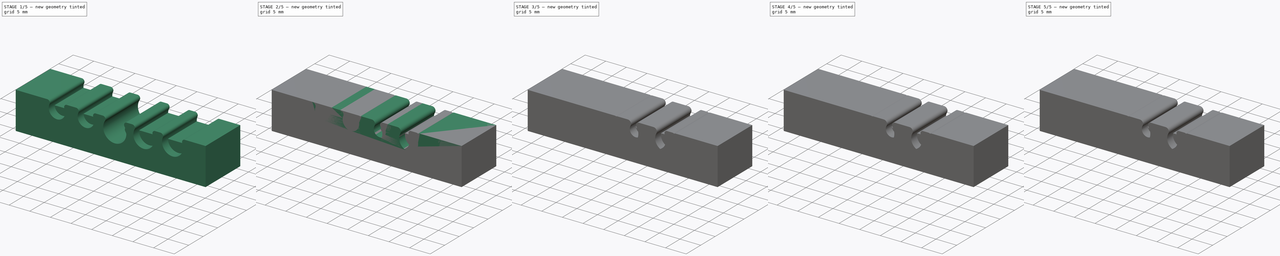
[diagram: build sequence overview — one tinted view per stage of 5, left to right]
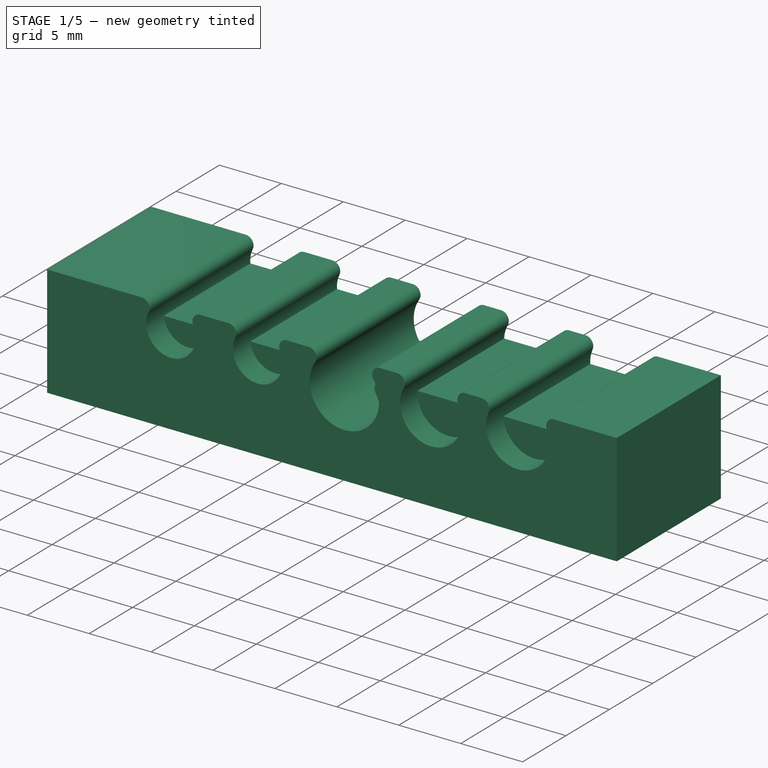
[diagram: stage 1 of 5 — iso view after this stage's code; geometry added in this stage tinted green]
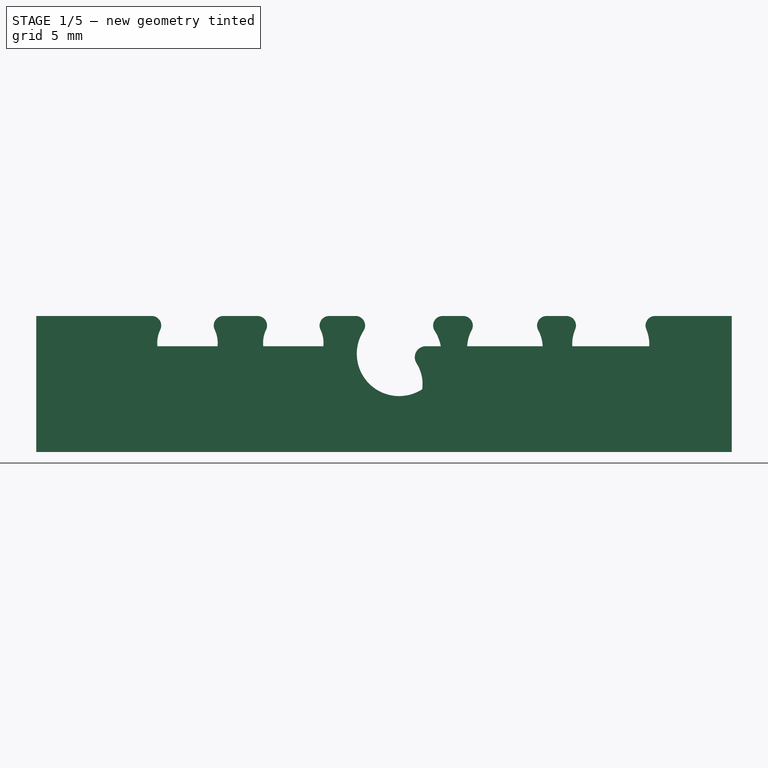
[diagram: stage 1 of 5 — front view after this stage's code; geometry added in this stage tinted green]
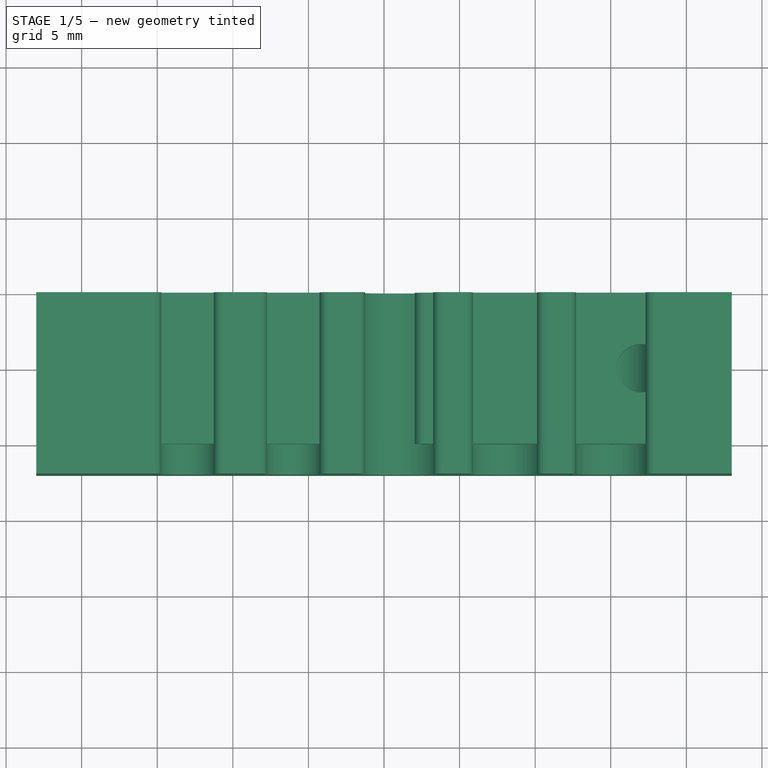
[diagram: stage 1 of 5 — top view after this stage's code; geometry added in this stage tinted green]
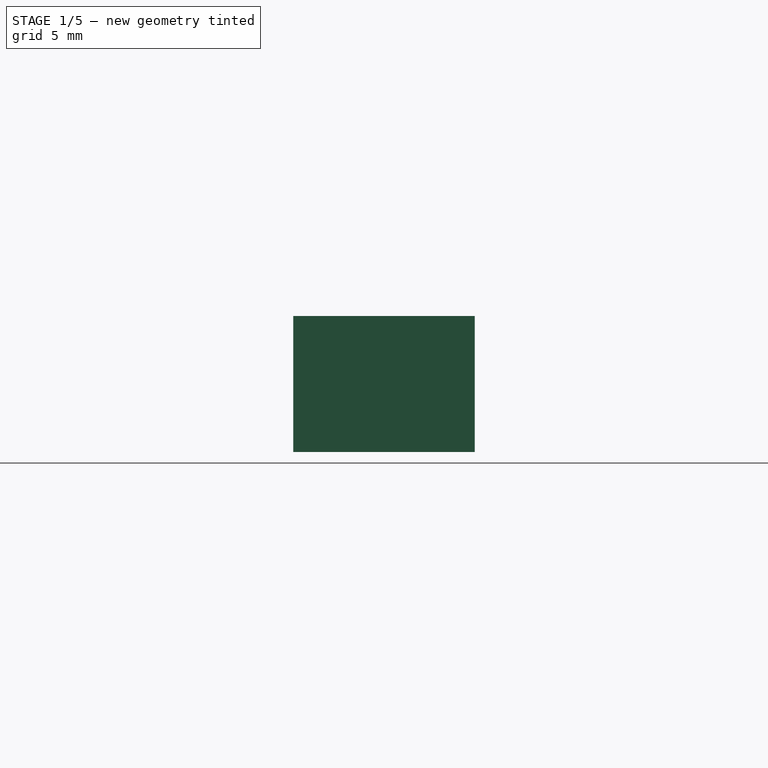
[diagram: stage 1 of 5 — right view after this stage's code; geometry added in this stage tinted green]
FCSTD DOCUMENT  (FreeCAD 1.0R39109 (Git))
Label: Clamps
License: All rights reserved
LicenseURL: https://en.wikipedia.org/wiki/All_rights_reserved
objects: Sketcher::SketchObject×20, PartDesign::Pad×10, PartDesign::Pocket×10, PartDesign::Body×10
note: 110 computed .brp shape members not serialized (recipe doc carries the construction recipe); baked Part::Feature solids carry a one-line shape summary decoded from their .brp

FEATURE [PartDesign::Body] Body019  label="Wires-Stepper-camera-Relit"
  AllowCompound = false
  Group = -> [Sketch028,Pad016,Sketch029,Pocket007]
  Origin = -> Origin1631
  Placement = pos=(60,60,0) rot=(0.71,0.71,0;0rad)
  Tip = -> Pocket007
FEATURE [Sketcher::SketchObject] Sketch030
  ArcFitTolerance = 0
  AttachmentSupport = -> [XZ_Plane1632]
  FullyConstrained = true
  MakeInternals = false
  MapMode = 5
  Placement = pos=(0,0,0) rot=(1,0,0;1.5708rad)
  sketch-geometry (9):
    g0: LineSegment StartX=-20 StartY=0 StartZ=0 EndX=20 EndY=0 EndZ=0
    g1: LineSegment StartX=20 StartY=0 StartZ=0 EndX=20 EndY=7 EndZ=0
    g2: LineSegment StartX=-20 StartY=7 StartZ=0 EndX=-20 EndY=0 EndZ=0
    g3: ArcOfCircle CenterX=-3e-16 CenterY=4.5 CenterZ=0 NormalX=0 NormalY=0 NormalZ=1 AngleXU=0 Radius=2.55 StartAngle=2.57389 EndAngle=6.85089
    g4: ArcOfCircle CenterX=2.76897 CenterY=6.26587 CenterZ=0 NormalX=0 NormalY=0 NormalZ=1 AngleXU=0 Radius=0.734129 StartAngle=1.5708 EndAngle=3.7093
    g5: LineSegment [constr] StartX=0 StartY=10 StartZ=0 EndX=0 EndY=0 EndZ=0
    g6: LineSegment StartX=2.76897 StartY=7 StartZ=0 EndX=20 EndY=7 EndZ=0
    g7: LineSegment StartX=-20 StartY=7 StartZ=0 EndX=-2.76897 EndY=7 EndZ=0
    g8: ArcOfCircle CenterX=-2.76897 CenterY=6.26587 CenterZ=0 NormalX=0 NormalY=0 NormalZ=1 AngleXU=0 Radius=0.734129 StartAngle=5.71548 EndAngle=7.85398
  constraints (26):
    c: Coincident(g0,g1)
    c: Coincident(g2,g0)
    c: Vertical(g1)
    c: Vertical(g2)
    c: PointOnObject(g0,g-1)
    c: Symmetric(g0,g0,g-2)
    c: DistanceX(g0,g0) = 40
    c: DistanceY(g2,g2) = 7
    c: Tangent(g4,g3) = 1.5708
    c: PointOnObject(g5,g0)
    c: Vertical(g5)
    c: Symmetric(g3,g3,g5)
    c: DistanceX(g3,g3) = 4.3
    c: DistanceY(g5,g5) = 10
    c: Equal(g2,g1)
    c: Horizontal(g6)
    c: Tangent(g6,g4) = 1.5708
    c: Coincident(g7,g2)
    c: Horizontal(g7)
    c: Tangent(g8,g3) = 1.5708
    c: Equal(g8,g4)
    c: Diameter(g3) = 5.1
    c: DistanceY(g3) = 4.5
    c: Coincident(g1,g6)
    c: PointOnObject(g5,g-2)
    c: Coincident(g7,g8)
FEATURE [PartDesign::Pad] Pad017
  Direction = (0,-1,2e-16)
  Length = 10
  Length2 = 10
  Placement = pos=(0,0,0) rot=(1,0,0;1.5708rad)
  Profile = -> Sketch030
  ReferenceAxis = -> Sketch030 [N_Axis]
  Suppressed = false
  Type = 0
FEATURE [Sketcher::SketchObject] Sketch031
  ArcFitTolerance = 0
  AttachmentSupport = -> [Pad017]
  FullyConstrained = true
  MakeInternals = false
  MapMode = 5
  Placement = pos=(0,1.6e-15,7) rot=(0,0,1;3.14159rad)
  sketch-geometry (3):
    g0: Circle CenterX=-17 CenterY=5 CenterZ=0 NormalX=0 NormalY=0 NormalZ=1 AngleXU=0 Radius=1.6
    g1: Circle CenterX=17 CenterY=5 CenterZ=0 NormalX=0 NormalY=0 NormalZ=1 AngleXU=0 Radius=1.6
    g2: LineSegment [constr] StartX=-17 StartY=5 StartZ=0 EndX=17 EndY=5 EndZ=0
  constraints (7):
    c: Coincident(g2,g0)
    c: Coincident(g2,g1)
    c: DistanceY(g1) = 5
    c: Symmetric(g0,g1,g-2)
    c: Equal(g0,g1)
    c: Radius(g0) = 1.6
    c: DistanceX(g2,g2) = 34
FEATURE [PartDesign::Pocket] Pocket017
  BaseFeature = -> Pad017
  Direction = (0,0,-1)
  Length = 5
  Length2 = 5
  Placement = pos=(0,0,0) rot=(1,0,0;1.5708rad)
  Profile = -> Sketch031
  ReferenceAxis = -> Sketch031 [N_Axis]
  Refine = true
  Suppressed = false
  Type = 1
FEATURE [PartDesign::Body] Body024  label="Wires-back"
  AllowCompound = false
  Group = -> [Sketch039,Pad021,Sketch040,Pocket013]
  Origin = -> Origin1778
  Placement = pos=(60,180,0) rot=(1,0,0;0rad)
  Tip = -> Pocket013
FEATURE [Sketcher::SketchObject] Sketch042
  ArcFitTolerance = 0
  AttachmentSupport = -> [XZ_Plane1779]
  FullyConstrained = false
  MakeInternals = false
  MapMode = 5
  Placement = pos=(0,0,0) rot=(1,0,0;1.5708rad)
  sketch-geometry (31):
    g0: LineSegment StartX=-23 StartY=0 StartZ=0 EndX=23 EndY=0 EndZ=0
    g1: LineSegment StartX=23 StartY=0 StartZ=0 EndX=23 EndY=9 EndZ=0
    g2: LineSegment StartX=-23 StartY=9 StartZ=0 EndX=-23 EndY=0 EndZ=0
    g3: ArcOfCircle CenterX=-6 CenterY=7.21883 CenterZ=0 NormalX=0 NormalY=0 NormalZ=1 AngleXU=0 Radius=2 StartAngle=2.69057 EndAngle=6.73421
    g4: ArcOfCircle CenterX=-3.63 CenterY=8.36667 CenterZ=0 NormalX=0 NormalY=0 NormalZ=1 AngleXU=0 Radius=0.63333 StartAngle=1.5708 EndAngle=3.59262
    g5: LineSegment [constr] StartX=-6 StartY=10 StartZ=0 EndX=-6 EndY=0 EndZ=0
    g6: ArcOfCircle CenterX=1 CenterY=6.5 CenterZ=0 NormalX=0 NormalY=0 NormalZ=1 AngleXU=0 Radius=2.8 StartAngle=2.56676 EndAngle=6.85801
    g7: ArcOfCircle CenterX=8 CenterY=6.87842 CenterZ=0 NormalX=0 NormalY=0 NormalZ=1 AngleXU=0 Radius=2.5 StartAngle=2.64666 EndAngle=6.77812
    g8: ArcOfCircle CenterX=10.7573 CenterY=8.36667 CenterZ=0 NormalX=0 NormalY=0 NormalZ=1 AngleXU=0 Radius=0.63333 StartAngle=1.57081 EndAngle=3.63653
    g9: ArcOfCircle CenterX=5.24267 CenterY=8.36667 CenterZ=0 NormalX=0 NormalY=0 NormalZ=1 AngleXU=0 Radius=0.63333 StartAngle=5.78825 EndAngle=7.85398
    g10: ArcOfCircle CenterX=3.88155 CenterY=8.36667 CenterZ=0 NormalX=0 NormalY=0 NormalZ=1 AngleXU=0 Radius=0.63333 StartAngle=1.5708 EndAngle=3.71642
    g11: ArcOfCircle CenterX=-1.88155 CenterY=8.36667 CenterZ=0 NormalX=0 NormalY=0 NormalZ=1 AngleXU=0 Radius=0.63333 StartAngle=5.70836 EndAngle=7.85398
    g12: LineSegment StartX=-3.63 StartY=9 StartZ=0 EndX=-1.88155 EndY=9 EndZ=0
    g13: LineSegment StartX=3.88155 StartY=9 StartZ=0 EndX=5.24267 EndY=9 EndZ=0
    g14: LineSegment [constr] StartX=1 StartY=10 StartZ=0 EndX=1 EndY=0 EndZ=0
    g15: LineSegment [constr] StartX=8 StartY=10 StartZ=0 EndX=8 EndY=0 EndZ=0
    g16: ArcOfCircle CenterX=-8.37 CenterY=8.36667 CenterZ=0 NormalX=0 NormalY=0 NormalZ=1 AngleXU=0 Radius=0.63333 StartAngle=5.83216 EndAngle=7.85398
    g17: LineSegment [constr] StartX=-23 StartY=9 StartZ=0 EndX=23 EndY=9 EndZ=0
    g18: Circle [constr] CenterX=-6 CenterY=7.21883 CenterZ=0 NormalX=0 NormalY=0 NormalZ=1 AngleXU=0 Radius=2
    g19: ArcOfCircle CenterX=-13 CenterY=7.21883 CenterZ=0 NormalX=0 NormalY=0 NormalZ=1 AngleXU=0 Radius=2 StartAngle=2.69057 EndAngle=6.73421
    g20: LineSegment StartX=-8.37 StartY=9 StartZ=0 EndX=-10.63 EndY=9 EndZ=0
    g21: ArcOfCircle CenterX=-10.63 CenterY=8.36667 CenterZ=0 NormalX=0 NormalY=0 NormalZ=1 AngleXU=0 Radius=0.63333 StartAngle=1.5708 EndAngle=3.59262
    g22: ArcOfCircle CenterX=-15.37 CenterY=8.36667 CenterZ=0 NormalX=0 NormalY=0 NormalZ=1 AngleXU=0 Radius=0.63333 StartAngle=5.83216 EndAngle=7.85398
    g23: LineSegment StartX=-15.37 StartY=9 StartZ=0 EndX=-23 EndY=9 EndZ=0
    g24: LineSegment [constr] StartX=-13 StartY=0 StartZ=0 EndX=-13 EndY=10.054 EndZ=0
    g25: Circle [constr] CenterX=-13 CenterY=7.21883 CenterZ=0 NormalX=0 NormalY=0 NormalZ=1 AngleXU=0 Radius=2
    g26: LineSegment StartX=23 StartY=9 StartZ=0 EndX=17.9337 EndY=9 EndZ=0
    g27: ArcOfCircle CenterX=12.0663 CenterY=8.36667 CenterZ=0 NormalX=0 NormalY=0 NormalZ=1 AngleXU=0 Radius=0.63333 StartAngle=5.88449 EndAngle=7.85398
    g28: ArcOfCircle CenterX=15 CenterY=7.13085 CenterZ=0 NormalX=0 NormalY=0 NormalZ=1 AngleXU=0 Radius=2.55 StartAngle=2.7429 EndAngle=6.68188
    g29: ArcOfCircle CenterX=17.9337 CenterY=8.36667 CenterZ=0 NormalX=0 NormalY=0 NormalZ=1 AngleXU=0 Radius=0.63333 StartAngle=1.5708 EndAngle=3.54029
    g30: LineSegment StartX=10.7573 StartY=9 StartZ=0 EndX=12.0663 EndY=9 EndZ=0
  constraints (85):
    c: Coincident(g0,g1)
    c: Coincident(g2,g0)
    c: Vertical(g1)
    c: Vertical(g2)
    c: PointOnObject(g0,g-1)
    c: Symmetric(g0,g0,g-2)
    c: DistanceX(g0,g0) = 46
    c: DistanceY(g2,g2) = 9
    c: Tangent(g4,g3) = 1.5708
    c: PointOnObject(g5,g0)
    c: Vertical(g5)
    c: Symmetric(g3,g3,g5)
    c: DistanceY(g5,g5) = 10
    c: Equal(g2,g1)
    c: Tangent(g11,g6) = 1.5708
    c: Tangent(g10,g6) = 1.5708
    c: Tangent(g8,g7) = 1.5708
    c: Tangent(g9,g7) = 1.5708
    c: Tangent(g13,g9) = 1.5708
    c: Tangent(g13,g10) = 1.5708
    c: Equal(g9,g11)
    c: Equal(g11,g8)
    c: PointOnObject(g14,g0)
    c: Vertical(g14)
    c: PointOnObject(g15,g0)
    c: Vertical(g15)
    c: Symmetric(g6,g6,g14)
    c: Symmetric(g7,g7,g15)
    c: Tangent(g12,g11) = 1.5708
    c: Tangent(g12,g4) = 1.5708
    c: Tangent(g16,g3) = 1.5708
    c: Tangent(g17,g10)
    c: DistanceX(g5,g14) = 7
    c: DistanceX(g14,g15) = 7
    c: PointOnObject(g11,g17)
    c: Horizontal(g13)
    c: DistanceX(g6,g6) = 4.7
    c: Diameter(g3) = 4
    c: Diameter(g7) = 5
    c: DistanceX(g7,g7) = 4.4
    c: DistanceX(g3,g3) = 3.6
    c: Equal(g4,g11)
    c: DistanceY(g6,g10) = 2.5
    c: Equal(g16,g4)
    c: Equal(g5,g14)
    c: Equal(g14,g15)
    c: Coincident(g18,g3)
    c: PointOnObject(g3,g18)
    c: Diameter(g6) = 5.6
    c: Horizontal(g20)
    c: Horizontal(g23)
    c: Coincident(g2,g23)
    c: Diameter(g19) = 4
    c: Tangent(g20,g16) = -1.5708
    c: Tangent(g21,g20) = -1.5708
    c: Tangent(g23,g22) = -1.5708
    c: Equal(g22,g21)
    c: Equal(g21,g16)
    c: Coincident(g17,g2)
    c: PointOnObject(g24,g0)
    c: Vertical(g24)
    c: PointOnObject(g19,g24)
    c: Coincident(g25,g19)
    c: PointOnObject(g19,g25)
    c: DistanceX(g19,g19) = 3.6
    c: DistanceX(g24,g5) = 7
    c: Tangent(g21,g19) = 1.5708
    c: Tangent(g22,g19) = 1.5708
    c: Horizontal(g12)
    c: DistanceX(g0,g24) = 10
    c: Coincident(g1,g17)
    c: Coincident(g26,g1)
    c: PointOnObject(g26,g17)
    c: PointOnObject(g27,g17)
    c: Tangent(g26,g29) = -1.5708
    c: Tangent(g29,g28) = 1.5708
    c: Tangent(g28,g27) = 1.5708
    c: Coincident(g30,g8)
    c: Horizontal(g30)
    c: Equal(g8,g27)
    c: Equal(g27,g29)
    c: Diameter(g28) = 5.1
    c: DistanceX(g27,g28) = 4.7
    c: DistanceX(g7,g28) = 7
    c: Tangent(g30,g27) = 1.5708
FEATURE [PartDesign::Pad] Pad023  label="Pad024"
  Direction = (0,-1,2e-16)
  Length = 12
  Length2 = 10
  Placement = pos=(0,0,0) rot=(1,0,0;1.5708rad)
  Profile = -> Sketch042
  ReferenceAxis = -> Sketch042 [N_Axis]
  Suppressed = false
  Type = 0
FEATURE [Sketcher::SketchObject] Sketch043
  ArcFitTolerance = 0
  AttachmentSupport = -> [Pad023]
  FullyConstrained = true
  MakeInternals = false
  MapMode = 5
  Placement = pos=(-23,0,0) rot=(0.707107,0,-0.707107;3.14159rad)
  sketch-geometry (3):
    g0: Circle CenterX=-4.5 CenterY=8.8 CenterZ=0 NormalX=0 NormalY=0 NormalZ=1 AngleXU=0 Radius=2
    g1: Circle CenterX=-4.5 CenterY=3.2 CenterZ=0 NormalX=0 NormalY=0 NormalZ=1 AngleXU=0 Radius=2
    g2: LineSegment [constr] StartX=-4.5 StartY=8.8 StartZ=0 EndX=-4.5 EndY=3.2 EndZ=0
  constraints (8):
    c: Equal(g0,g1)
    c: Coincident(g2,g0)
    c: Coincident(g2,g1)
    c: Vertical(g2)
    c: Diameter(g0) = 4
    c: DistanceX(g1,g-1) = 4.5
    c: DistanceY(g2,g2) = 5.6
    c: DistanceY(g1) = 3.2
FEATURE [PartDesign::Pocket] Pocket018
  BaseFeature = -> Pad023
  Direction = (1,0,2e-16)
  Length = 5
  Length2 = 5
  Placement = pos=(0,0,0) rot=(1,0,0;1.5708rad)
  Profile = -> Sketch043
  ReferenceAxis = -> Sketch043 [N_Axis]
  Refine = true
  Suppressed = false
  Type = 0
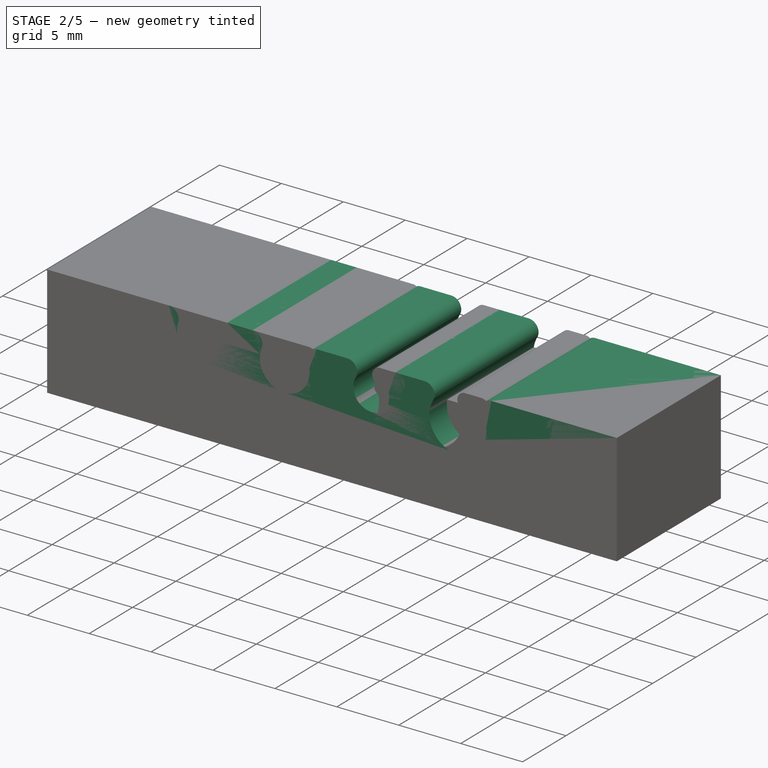
[diagram: stage 2 of 5 — iso view after this stage's code; geometry added in this stage tinted green]
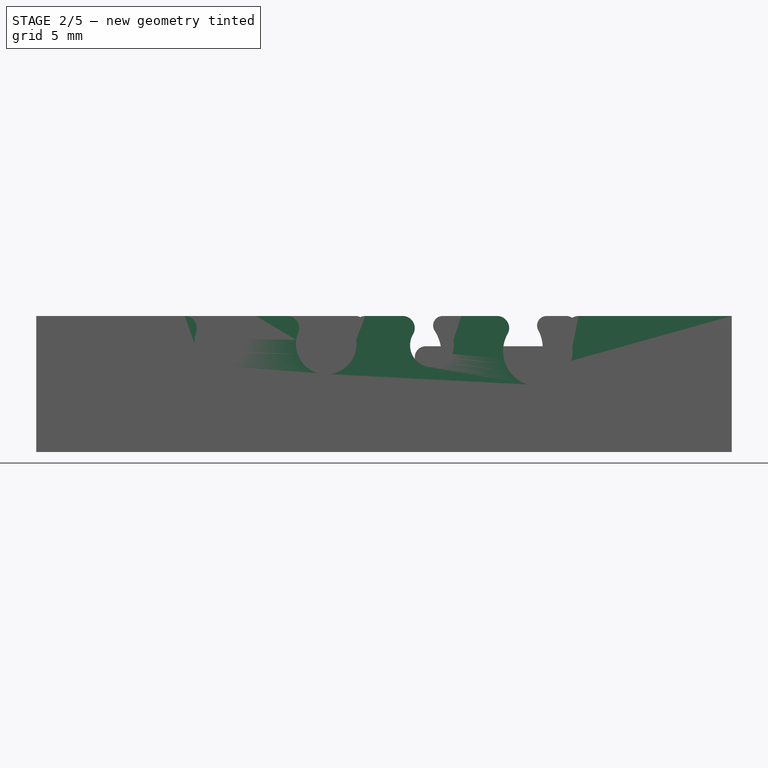
[diagram: stage 2 of 5 — front view after this stage's code; geometry added in this stage tinted green]
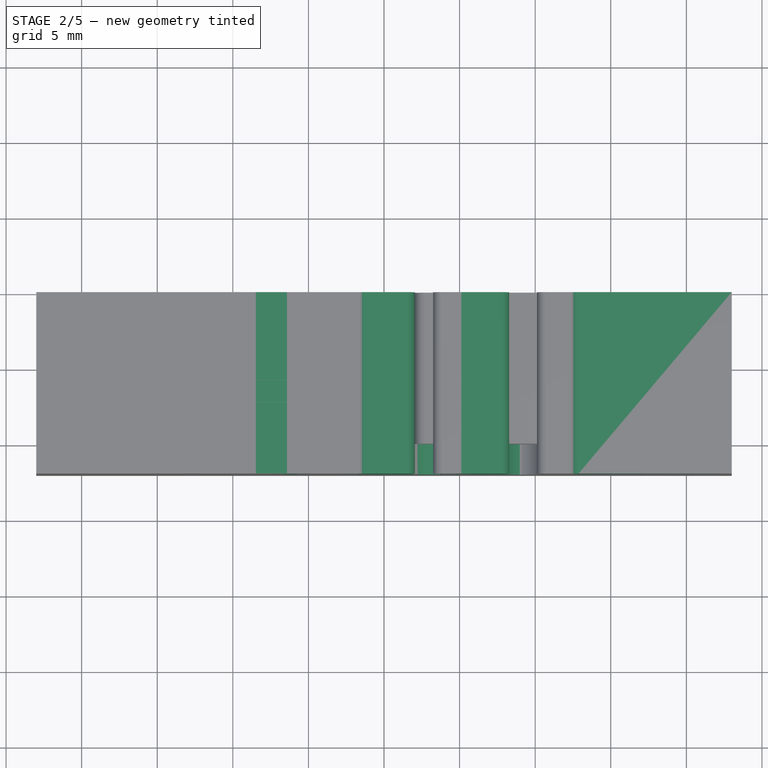
[diagram: stage 2 of 5 — top view after this stage's code; geometry added in this stage tinted green]
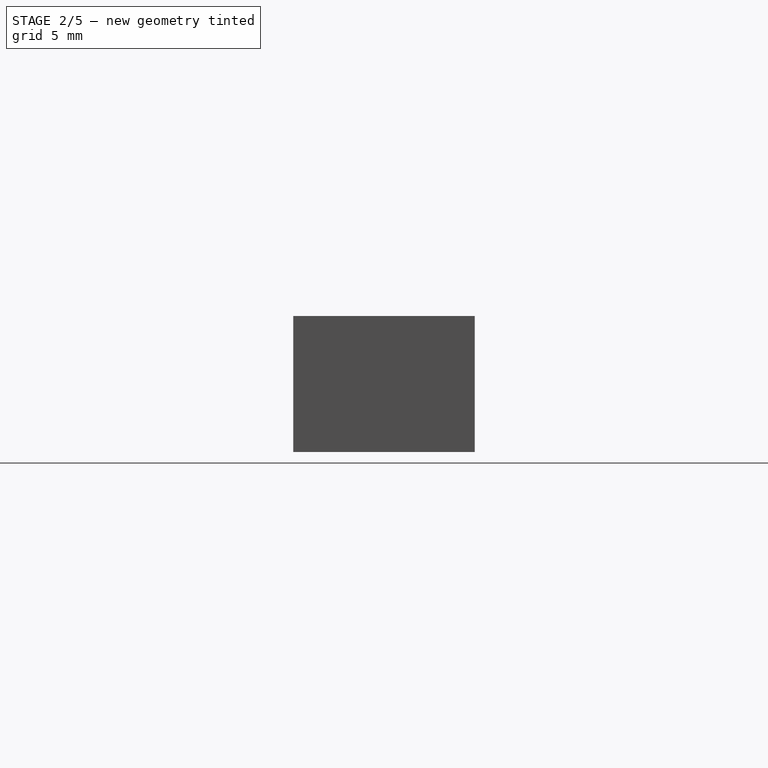
[diagram: stage 2 of 5 — right view after this stage's code; geometry added in this stage tinted green]
FEATURE [PartDesign::Body] Body025  label="Wires-3xUSB-2xFan-Eth"
  AllowCompound = false
  Group = -> [Sketch042,Pad023,Sketch043,Pocket018]
  Origin = -> Origin1779
  Placement = pos=(40,210,23) rot=(0.71,0,0.71;3.14159rad)
  Tip = -> Pocket018
FEATURE [Sketcher::SketchObject] Sketch044  label="Sketch049"
  ArcFitTolerance = 0
  AttachmentSupport = -> [XZ_Plane1947]
  FullyConstrained = true
  MakeInternals = false
  MapMode = 5
  Placement = pos=(0,0,0) rot=(1,0,0;1.5708rad)
  sketch-geometry (26):
    g0: LineSegment StartX=-23 StartY=0 StartZ=0 EndX=23 EndY=0 EndZ=0
    g1: LineSegment StartX=23 StartY=0 StartZ=0 EndX=23 EndY=9 EndZ=0
    g2: LineSegment StartX=-23 StartY=9 StartZ=0 EndX=-23 EndY=0 EndZ=0
    g3: ArcOfCircle CenterX=-10.8252 CenterY=7.35521 CenterZ=0 NormalX=0 NormalY=0 NormalZ=1 AngleXU=0 Radius=1.7 StartAngle=2.79689 EndAngle=6.62789
    g4: ArcOfCircle CenterX=-8.47223 CenterY=8.2 CenterZ=0 NormalX=0 NormalY=0 NormalZ=1 AngleXU=0 Radius=0.8 StartAngle=1.5708 EndAngle=3.48629
    g5: LineSegment [constr] StartX=-10.8252 StartY=10 StartZ=0 EndX=-10.8252 EndY=0 EndZ=0
    g6: ArcOfCircle CenterX=-3.82517 CenterY=7.13609 CenterZ=0 NormalX=0 NormalY=0 NormalZ=1 AngleXU=0 Radius=2 StartAngle=2.75183 EndAngle=6.67295
    g7: ArcOfCircle CenterX=3.17483 CenterY=7.05972 CenterZ=0 NormalX=0 NormalY=0 NormalZ=1 AngleXU=0 Radius=1.45 StartAngle=2.61013 EndAngle=6.81464
    g8: ArcOfCircle CenterX=5.11448 CenterY=8.2 CenterZ=0 NormalX=0 NormalY=0 NormalZ=1 AngleXU=0 Radius=0.8 StartAngle=1.57078 EndAngle=3.67305
    g9: ArcOfCircle CenterX=1.23517 CenterY=8.2 CenterZ=0 NormalX=0 NormalY=0 NormalZ=1 AngleXU=0 Radius=0.8 StartAngle=5.75173 EndAngle=7.85398
    g10: ArcOfCircle CenterX=-1.23517 CenterY=8.2 CenterZ=0 NormalX=0 NormalY=0 NormalZ=1 AngleXU=0 Radius=0.8 StartAngle=1.5708 EndAngle=3.53135
    g11: ArcOfCircle CenterX=-6.41517 CenterY=8.2 CenterZ=0 NormalX=0 NormalY=0 NormalZ=1 AngleXU=0 Radius=0.8 StartAngle=5.89342 EndAngle=7.85398
    g12: LineSegment StartX=-8.47223 StartY=9 StartZ=0 EndX=-6.41517 EndY=9 EndZ=0
    g13: LineSegment StartX=-1.23517 StartY=9 StartZ=0 EndX=1.23517 EndY=9 EndZ=0
    g14: LineSegment [constr] StartX=-3.82517 StartY=10 StartZ=0 EndX=-3.82517 EndY=0 EndZ=0
    g15: LineSegment [constr] StartX=3.17483 StartY=10 StartZ=0 EndX=3.17483 EndY=0 EndZ=0
    g16: ArcOfCircle CenterX=-13.1781 CenterY=8.2 CenterZ=0 NormalX=0 NormalY=0 NormalZ=1 AngleXU=0 Radius=0.8 StartAngle=5.93848 EndAngle=7.85399
    g17: LineSegment [constr] StartX=-23 StartY=9 StartZ=0 EndX=23 EndY=9 EndZ=0
    g18: Circle [constr] CenterX=-10.8252 CenterY=7.35521 CenterZ=0 NormalX=0 NormalY=0 NormalZ=1 AngleXU=0 Radius=1.7
    g19: LineSegment StartX=-13.1781 StartY=9 StartZ=0 EndX=-23 EndY=9 EndZ=0
    g20: LineSegment StartX=23 StartY=9 StartZ=0 EndX=12.8705 EndY=9 EndZ=0
    g21: ArcOfCircle CenterX=7.47918 CenterY=8.2 CenterZ=0 NormalX=0 NormalY=0 NormalZ=1 AngleXU=0 Radius=0.8 StartAngle=5.76671 EndAngle=7.85398
    g22: ArcOfCircle CenterX=10.1748 CenterY=6.66916 CenterZ=0 NormalX=0 NormalY=0 NormalZ=1 AngleXU=0 Radius=2.3 StartAngle=2.62512 EndAngle=6.79966
    g23: ArcOfCircle CenterX=12.8705 CenterY=8.2 CenterZ=0 NormalX=0 NormalY=0 NormalZ=1 AngleXU=0 Radius=0.8 StartAngle=1.5708 EndAngle=3.65807
    g24: LineSegment StartX=5.11449 StartY=9 StartZ=0 EndX=7.47918 EndY=9 EndZ=0
    g25: Circle [constr] CenterX=10.1748 CenterY=6.66916 CenterZ=0 NormalX=0 NormalY=0 NormalZ=1 AngleXU=0 Radius=2.3
  constraints (71):
    c: Coincident(g0,g1)
    c: Coincident(g2,g0)
    c: Vertical(g1)
    c: Vertical(g2)
    c: PointOnObject(g0,g-1)
    c: Symmetric(g0,g0,g-2)
    c: DistanceX(g0,g0) = 46
    c: DistanceY(g2,g2) = 9
    c: Tangent(g4,g3) = 1.5708
    c: PointOnObject(g5,g0)
    c: Vertical(g5)
    c: Symmetric(g3,g3,g5)
    c: DistanceY(g5,g5) = 10
    c: Equal(g2,g1)
    c: Tangent(g11,g6) = 1.5708
    c: Tangent(g10,g6) = 1.5708
    c: Tangent(g8,g7) = 1.5708
    c: Tangent(g9,g7) = 1.5708
    c: Tangent(g13,g9) = 1.5708
    c: Tangent(g13,g10) = 1.5708
    c: Equal(g9,g11)
    c: Equal(g11,g8)
    c: PointOnObject(g14,g0)
    c: Vertical(g14)
    c: PointOnObject(g15,g0)
    c: Vertical(g15)
    c: Symmetric(g6,g6,g14)
    c: Symmetric(g7,g7,g15)
    c: Tangent(g12,g11) = 1.5708
    c: Tangent(g12,g4) = 1.5708
    c: Tangent(g16,g3) = 1.5708
    c: Tangent(g17,g10)
    c: DistanceX(g5,g14) = 7
    c: DistanceX(g14,g15) = 7
    c: PointOnObject(g11,g17)
    c: DistanceX(g6,g6) = 3.7
    c: Diameter(g3) = 3.4
    c: Diameter(g7) = 2.9
    c: DistanceX(g7,g7) = 2.5
    c: DistanceX(g3,g3) = 3.2
    c: Equal(g4,g11)
    c: Equal(g16,g4)
    c: Equal(g5,g14)
    c: Equal(g14,g15)
    c: Coincident(g18,g3)
    c: PointOnObject(g3,g18)
    c: Diameter(g6) = 4
    c: Horizontal(g19)
    c: Coincident(g2,g19)
    c: Coincident(g17,g2)
    c: Horizontal(g12)
    c: Coincident(g1,g17)
    c: Coincident(g20,g1)
    c: PointOnObject(g20,g17)
    c: PointOnObject(g21,g17)
    c: Tangent(g20,g23) = -1.5708
    c: Tangent(g23,g22) = 1.5708
    c: Tangent(g22,g21) = 1.5708
    c: Coincident(g24,g8)
    c: Horizontal(g24)
    c: Equal(g8,g21)
    c: Equal(g21,g23)
    c: Diameter(g22) = 4.6
    c: DistanceX(g21,g22) = 4
    c: DistanceX(g7,g22) = 7
    c: Tangent(g24,g21) = 1.5708
    c: Coincident(g25,g22)
    c: PointOnObject(g22,g25)
    c: Radius(g23) = 0.8
    c: Coincident(g16,g19)
    c: Symmetric(g10,g9,g-2)
FEATURE [PartDesign::Pad] Pad024  label="Pad025"
  Direction = (0,-1,2e-16)
  Length = 12
  Length2 = 10
  Placement = pos=(0,0,0) rot=(1,0,0;1.5708rad)
  Profile = -> Sketch044
  ReferenceAxis = -> Sketch044 [N_Axis]
  Suppressed = false
  Type = 0
FEATURE [Sketcher::SketchObject] Sketch045
  ArcFitTolerance = 0
  AttachmentSupport = -> [Pad024]
  FullyConstrained = true
  MakeInternals = false
  MapMode = 5
  Placement = pos=(-23,0,0) rot=(0.707107,0,-0.707107;3.14159rad)
  sketch-geometry (3):
    g0: Circle CenterX=-4.5 CenterY=8.8 CenterZ=0 NormalX=0 NormalY=0 NormalZ=1 AngleXU=0 Radius=2
    g1: Circle CenterX=-4.5 CenterY=3.2 CenterZ=0 NormalX=0 NormalY=0 NormalZ=1 AngleXU=0 Radius=2
    g2: LineSegment [constr] StartX=-4.5 StartY=8.8 StartZ=0 EndX=-4.5 EndY=3.2 EndZ=0
  constraints (8):
    c: Equal(g0,g1)
    c: Coincident(g2,g0)
    c: Coincident(g2,g1)
    c: Vertical(g2)
    c: Diameter(g0) = 4
    c: DistanceX(g1,g-1) = 4.5
    c: DistanceY(g2,g2) = 5.6
    c: DistanceY(g1) = 3.2
FEATURE [PartDesign::Pocket] Pocket015
  BaseFeature = -> Pad024
  Direction = (1,0,2e-16)
  Length = 5
  Length2 = 5
  Placement = pos=(0,0,0) rot=(1,0,0;1.5708rad)
  Profile = -> Sketch045
  ReferenceAxis = -> Sketch045 [N_Axis]
  Suppressed = false
  Type = 0
FEATURE [PartDesign::Body] Body026  label="Wires-2xUSB-HDMI-2xFan"
  AllowCompound = false
  Group = -> [Sketch044,Pad024,Sketch045,Pocket015]
  Origin = -> Origin1947
  Placement = pos=(40,189,23) rot=(0.707107,0,0.707107;3.14159rad)
  Tip = -> Pocket015
FEATURE [Sketcher::SketchObject] Sketch047
  ArcFitTolerance = 0
  AttachmentSupport = -> [XZ_Plane1951]
  FullyConstrained = false
  MakeInternals = false
  MapMode = 5
  Placement = pos=(0,0,0) rot=(1,0,0;1.5708rad)
  sketch-geometry (21):
    g0: LineSegment StartX=-23 StartY=0 StartZ=0 EndX=23 EndY=0 EndZ=0
    g1: LineSegment StartX=23 StartY=0 StartZ=0 EndX=23 EndY=9 EndZ=0
    g2: LineSegment StartX=-23 StartY=9 StartZ=0 EndX=-23 EndY=0 EndZ=0
    g3: LineSegment [constr] StartX=-6 StartY=10 StartZ=0 EndX=-6 EndY=0 EndZ=0
    g4: ArcOfCircle CenterX=1 CenterY=6.5 CenterZ=0 NormalX=0 NormalY=0 NormalZ=1 AngleXU=0 Radius=2.8 StartAngle=2.56676 EndAngle=6.85801
    g5: ArcOfCircle CenterX=8 CenterY=6.87842 CenterZ=0 NormalX=0 NormalY=0 NormalZ=1 AngleXU=0 Radius=2.5 StartAngle=2.64666 EndAngle=6.77812
    g6: ArcOfCircle CenterX=10.7573 CenterY=8.36667 CenterZ=0 NormalX=0 NormalY=0 NormalZ=1 AngleXU=0 Radius=0.63333 StartAngle=1.5708 EndAngle=3.63653
    g7: ArcOfCircle CenterX=5.24267 CenterY=8.36667 CenterZ=0 NormalX=0 NormalY=0 NormalZ=1 AngleXU=0 Radius=0.63333 StartAngle=5.78825 EndAngle=7.85398
    g8: ArcOfCircle CenterX=3.88155 CenterY=8.36667 CenterZ=0 NormalX=0 NormalY=0 NormalZ=1 AngleXU=0 Radius=0.63333 StartAngle=1.5708 EndAngle=3.71642
    g9: ArcOfCircle CenterX=-1.88155 CenterY=8.36667 CenterZ=0 NormalX=0 NormalY=0 NormalZ=1 AngleXU=0 Radius=0.63333 StartAngle=5.70836 EndAngle=7.85398
    g10: LineSegment StartX=3.88155 StartY=9 StartZ=0 EndX=5.24267 EndY=9 EndZ=0
    g11: LineSegment [constr] StartX=1 StartY=10 StartZ=0 EndX=1 EndY=0 EndZ=0
    g12: LineSegment [constr] StartX=8 StartY=10 StartZ=0 EndX=8 EndY=0 EndZ=0
    g13: LineSegment [constr] StartX=-23 StartY=9 StartZ=0 EndX=23 EndY=9 EndZ=0
    g14: LineSegment StartX=-1.88155 StartY=9 StartZ=0 EndX=-23 EndY=9 EndZ=0
    g15: LineSegment [constr] StartX=-13 StartY=0 StartZ=0 EndX=-13 EndY=10.054 EndZ=0
    g16: LineSegment StartX=23 StartY=9 StartZ=0 EndX=17.9337 EndY=9 EndZ=0
    g17: ArcOfCircle CenterX=12.0663 CenterY=8.36667 CenterZ=0 NormalX=0 NormalY=0 NormalZ=1 AngleXU=0 Radius=0.63333 StartAngle=5.88449 EndAngle=7.85398
    g18: ArcOfCircle CenterX=15 CenterY=7.13085 CenterZ=0 NormalX=0 NormalY=0 NormalZ=1 AngleXU=0 Radius=2.55 StartAngle=2.7429 EndAngle=6.68188
    g19: ArcOfCircle CenterX=17.9337 CenterY=8.36667 CenterZ=0 NormalX=0 NormalY=0 NormalZ=1 AngleXU=0 Radius=0.63333 StartAngle=1.5708 EndAngle=3.54029
    g20: LineSegment StartX=10.7573 StartY=9 StartZ=0 EndX=12.0663 EndY=9 EndZ=0
  constraints (60):
    c: Coincident(g0,g1)
    c: Coincident(g2,g0)
    c: Vertical(g1)
    c: Vertical(g2)
    c: PointOnObject(g0,g-1)
    c: Symmetric(g0,g0,g-2)
    c: DistanceX(g0,g0) = 46
    c: DistanceY(g2,g2) = 9
    c: PointOnObject(g3,g0)
    c: Vertical(g3)
    c: DistanceY(g3,g3) = 10
    c: Equal(g2,g1)
    c: Tangent(g9,g4) = 1.5708
    c: Tangent(g8,g4) = 1.5708
    c: Tangent(g6,g5) = 1.5708
    c: Tangent(g7,g5) = 1.5708
    c: Tangent(g10,g7) = 1.5708
    c: Tangent(g10,g8) = 1.5708
    c: Equal(g7,g9)
    c: Equal(g9,g6)
    c: PointOnObject(g11,g0)
    c: Vertical(g11)
    c: PointOnObject(g12,g0)
    c: Vertical(g12)
    c: Symmetric(g4,g4,g11)
    c: Symmetric(g5,g5,g12)
    c: Tangent(g13,g8)
    c: DistanceX(g3,g11) = 7
    c: DistanceX(g11,g12) = 7
    c: Horizontal(g10)
    c: DistanceX(g4,g4) = 4.7
    c: Diameter(g5) = 5
    c: DistanceX(g5,g5) = 4.4
    c: DistanceY(g4,g8) = 2.5
    c: Equal(g3,g11)
    c: Equal(g11,g12)
    c: Diameter(g4) = 5.6
    c: Horizontal(g14)
    c: Coincident(g2,g14)
    c: Coincident(g13,g2)
    c: PointOnObject(g15,g0)
    c: Vertical(g15)
    c: DistanceX(g15,g3) = 7
    c: DistanceX(g0,g15) = 10
    c: Coincident(g1,g13)
    c: Coincident(g16,g1)
    c: PointOnObject(g16,g13)
    c: PointOnObject(g17,g13)
    c: Tangent(g16,g19) = -1.5708
    c: Tangent(g19,g18) = 1.5708
    c: Tangent(g18,g17) = 1.5708
    c: Coincident(g20,g6)
    c: Horizontal(g20)
    c: Equal(g6,g17)
    c: Equal(g17,g19)
    c: Diameter(g18) = 5.1
    c: DistanceX(g17,g18) = 4.7
    c: DistanceX(g5,g18) = 7
    c: Tangent(g20,g17) = 1.5708
    c: Tangent(g9,g14) = -1.5708
FEATURE [PartDesign::Pad] Pad026  label="Pad027"
  Direction = (0,-1,2e-16)
  Length = 12
  Length2 = 10
  Placement = pos=(0,0,0) rot=(1,0,0;1.5708rad)
  Profile = -> Sketch047
  ReferenceAxis = -> Sketch047 [N_Axis]
  Suppressed = false
  Type = 0
FEATURE [Sketcher::SketchObject] Sketch048  label="Sketch050"
  ArcFitTolerance = 0
  AttachmentSupport = -> [Pad026]
  FullyConstrained = true
  MakeInternals = false
  MapMode = 5
  Placement = pos=(-23,0,0) rot=(0.707107,0,-0.707107;3.14159rad)
  sketch-geometry (3):
    g0: Circle CenterX=-4.5 CenterY=8.8 CenterZ=0 NormalX=0 NormalY=0 NormalZ=1 AngleXU=0 Radius=2
    g1: Circle CenterX=-4.5 CenterY=3.2 CenterZ=0 NormalX=0 NormalY=0 NormalZ=1 AngleXU=0 Radius=2
    g2: LineSegment [constr] StartX=-4.5 StartY=8.8 StartZ=0 EndX=-4.5 EndY=3.2 EndZ=0
  constraints (8):
    c: Equal(g0,g1)
    c: Coincident(g2,g0)
    c: Coincident(g2,g1)
    c: Vertical(g2)
    c: Diameter(g0) = 4
    c: DistanceX(g1,g-1) = 4.5
    c: DistanceY(g2,g2) = 5.6
    c: DistanceY(g1) = 3.2
FEATURE [PartDesign::Pocket] Pocket016
  BaseFeature = -> Pad026
  Direction = (1,0,2e-16)
  Length = 5
  Length2 = 5
  Placement = pos=(0,0,0) rot=(1,0,0;1.5708rad)
  Profile = -> Sketch048
  ReferenceAxis = -> Sketch048 [N_Axis]
  Suppressed = false
  Type = 0
FEATURE [PartDesign::Body] Body030  label="Wires-USB-USB-Eth"
  AllowCompound = false
  Group = -> [Sketch047,Pad026,Sketch048,Pocket016]
  Origin = -> Origin1951
  Placement = pos=(40,230,23) rot=(-0.71,0,-0.71;3.14159rad)
  Tip = -> Pocket016
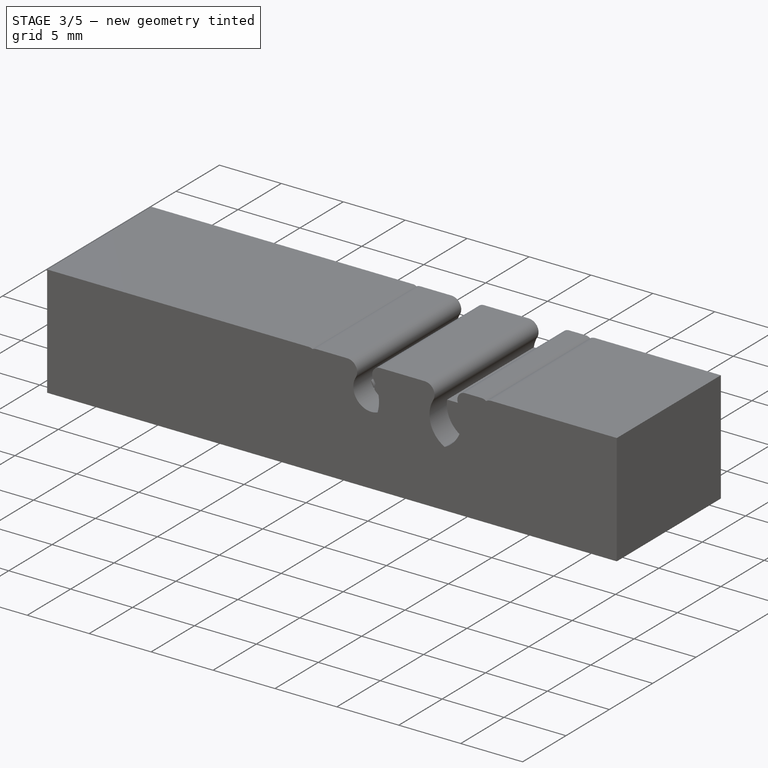
[diagram: stage 3 of 5 — iso view after this stage's code; geometry added in this stage tinted green]
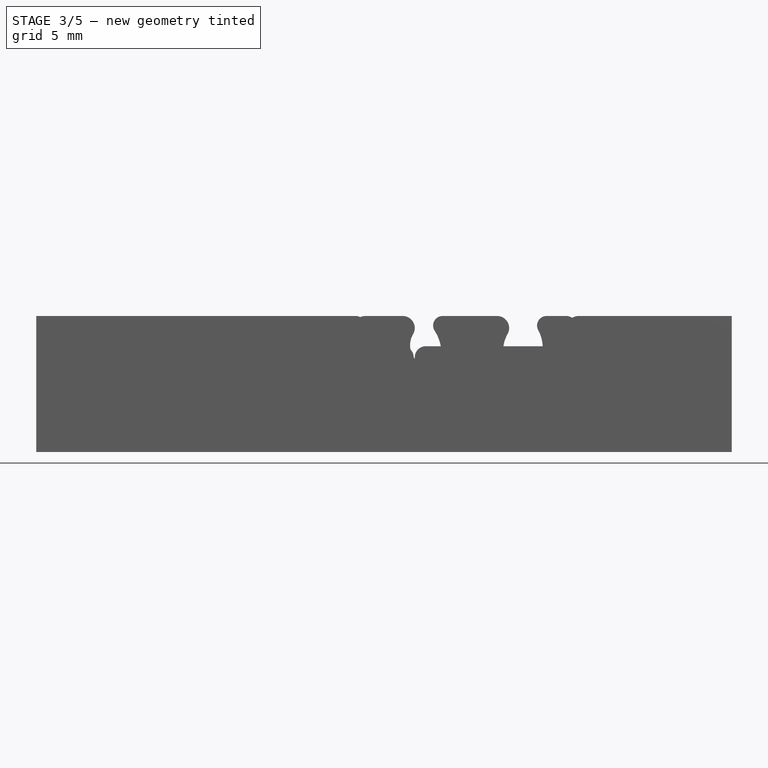
[diagram: stage 3 of 5 — front view after this stage's code; geometry added in this stage tinted green]
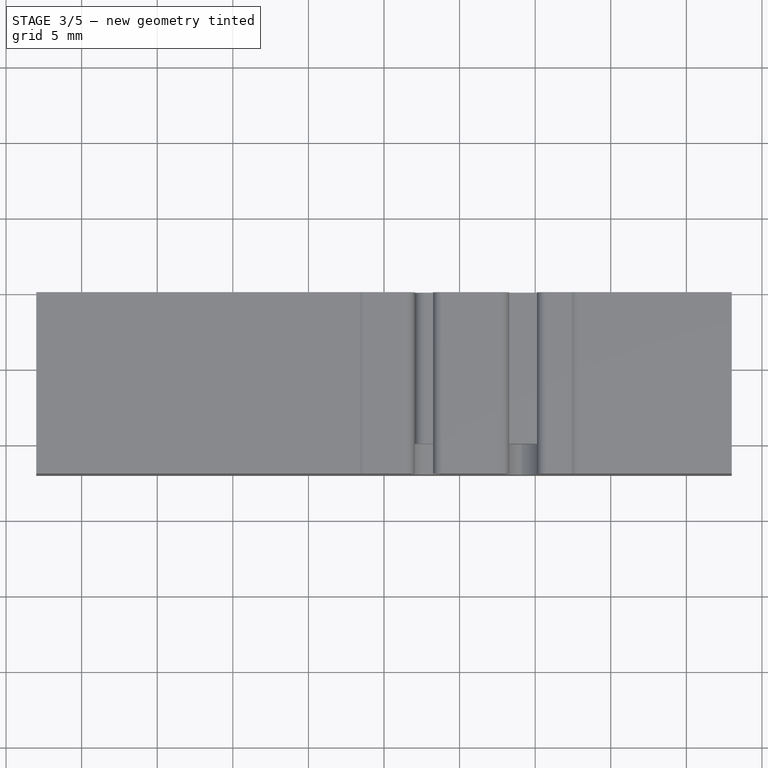
[diagram: stage 3 of 5 — top view after this stage's code; geometry added in this stage tinted green]
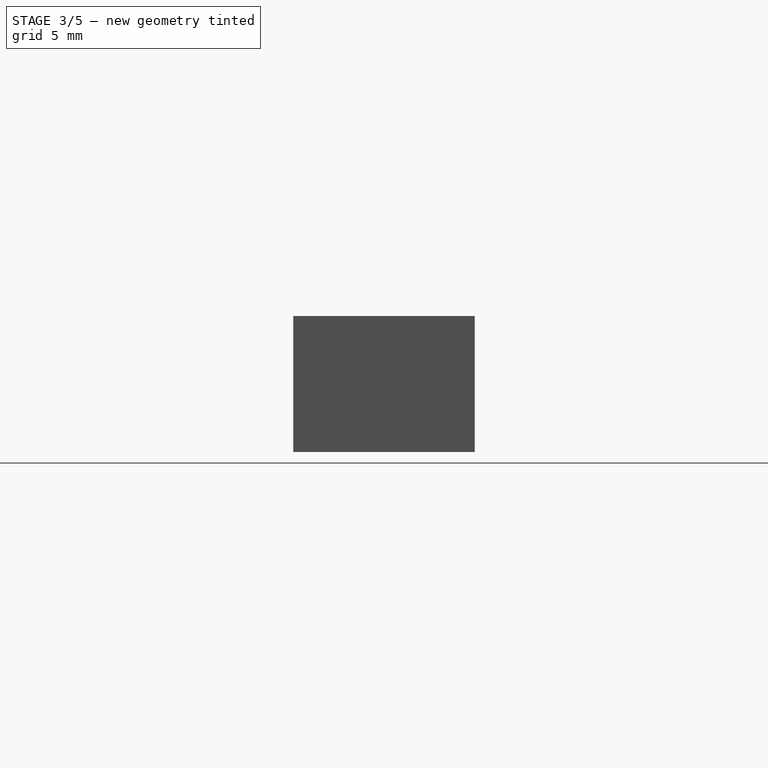
[diagram: stage 3 of 5 — right view after this stage's code; geometry added in this stage tinted green]
FEATURE [PartDesign::Body] Body015  label="Wires-6-220V"
  AllowCompound = false
  Group = -> [Sketch022,Pad013,Sketch023,Pocket004]
  Origin = -> Origin1627
  Placement = pos=(60,90,2) rot=(0,0,-1;3.14159rad)
  Tip = -> Pocket004
FEATURE [Sketcher::SketchObject] Sketch028
  ArcFitTolerance = 0
  AttachmentSupport = -> [XZ_Plane1631]
  FullyConstrained = true
  MakeInternals = false
  MapMode = 5
  Placement = pos=(0,0,0) rot=(1,0,0;1.5708rad)
  sketch-geometry (22):
    g0: LineSegment StartX=-20 StartY=0 StartZ=0 EndX=20 EndY=0 EndZ=0
    g1: LineSegment StartX=20 StartY=0 StartZ=0 EndX=20 EndY=7 EndZ=0
    g2: LineSegment StartX=-20 StartY=7 StartZ=0 EndX=-20 EndY=0 EndZ=0
    g3: ArcOfCircle CenterX=-10.5 CenterY=4.5 CenterZ=0 NormalX=0 NormalY=0 NormalZ=1 AngleXU=0 Radius=2.55 StartAngle=2.57389 EndAngle=6.85089
    g4: ArcOfCircle CenterX=10.5 CenterY=5.45873 CenterZ=0 NormalX=0 NormalY=0 NormalZ=1 AngleXU=0 Radius=1.55 StartAngle=2.78042 EndAngle=6.64436
    g5: ArcOfCircle CenterX=12.6368 CenterY=6.26587 CenterZ=0 NormalX=0 NormalY=0 NormalZ=1 AngleXU=0 Radius=0.734129 StartAngle=1.5708 EndAngle=3.50276
    g6: ArcOfCircle CenterX=8.36323 CenterY=6.26587 CenterZ=0 NormalX=0 NormalY=0 NormalZ=1 AngleXU=0 Radius=0.734129 StartAngle=5.92201 EndAngle=7.85398
    g7: ArcOfCircle CenterX=-7.73103 CenterY=6.26587 CenterZ=0 NormalX=0 NormalY=0 NormalZ=1 AngleXU=0 Radius=0.734129 StartAngle=1.5708 EndAngle=3.7093
    g8: LineSegment [constr] StartX=-10.5 StartY=10 StartZ=0 EndX=-10.5 EndY=0 EndZ=0
    g9: LineSegment [constr] StartX=10.5 StartY=10 StartZ=0 EndX=10.5 EndY=0 EndZ=0
    g10: ArcOfCircle CenterX=3.5 CenterY=5.25963 CenterZ=0 NormalX=0 NormalY=0 NormalZ=1 AngleXU=0 Radius=1.75 StartAngle=2.72454 EndAngle=6.70024
    g11: ArcOfCircle CenterX=5.7712 CenterY=6.26587 CenterZ=0 NormalX=0 NormalY=0 NormalZ=1 AngleXU=0 Radius=0.734129 StartAngle=1.5708 EndAngle=3.55865
    g12: ArcOfCircle CenterX=1.2288 CenterY=6.26587 CenterZ=0 NormalX=0 NormalY=0 NormalZ=1 AngleXU=0 Radius=0.734129 StartAngle=5.86613 EndAngle=7.85398
    g13: LineSegment StartX=-7.73103 StartY=7 StartZ=0 EndX=1.2288 EndY=7 EndZ=0
    g14: LineSegment StartX=5.7712 StartY=7 StartZ=0 EndX=8.36323 EndY=7 EndZ=0
    g15: LineSegment [constr] StartX=-3.5 StartY=10 StartZ=0 EndX=-3.5 EndY=0 EndZ=0
    g16: LineSegment [constr] StartX=3.5 StartY=10 StartZ=0 EndX=3.5 EndY=0 EndZ=0
    g17: LineSegment StartX=-20 StartY=7 StartZ=0 EndX=-12.5348 EndY=7 EndZ=0
    g18: ArcOfCircle CenterX=-13.269 CenterY=6.26587 CenterZ=0 NormalX=0 NormalY=0 NormalZ=1 AngleXU=0 Radius=0.734129 StartAngle=5.71548 EndAngle=6.28319
    g19: LineSegment StartX=-12.5348 StartY=6.26587 StartZ=0 EndX=-12.5348 EndY=7 EndZ=0
    g20: LineSegment [constr] StartX=-12.5348 StartY=7 StartZ=0 EndX=12.6368 EndY=7 EndZ=0
    g21: LineSegment StartX=12.6368 StartY=7 StartZ=0 EndX=20 EndY=7 EndZ=0
  constraints (62):
    c: Coincident(g0,g1)
    c: Coincident(g2,g0)
    c: Vertical(g1)
    c: Vertical(g2)
    c: PointOnObject(g0,g-1)
    c: Symmetric(g0,g0,g-2)
    c: DistanceX(g0,g0) = 40
    c: DistanceY(g2,g2) = 7
    c: Equal(g7,g6)
    c: Equal(g6,g5)
    c: Tangent(g6,g4) = 1.5708
    c: Tangent(g5,g4) = 1.5708
    c: Tangent(g7,g3) = 1.5708
    c: PointOnObject(g8,g0)
    c: Vertical(g8)
    c: PointOnObject(g9,g0)
    c: Symmetric(g8,g9,g-2)
    c: Symmetric(g3,g3,g8)
    c: DistanceX(g3,g3) = 4.3
    c: Symmetric(g4,g4,g9)
    c: DistanceY(g8,g8) = 10
    c: Equal(g2,g1)
    c: Horizontal(g13)
    c: Horizontal(g14)
    c: Tangent(g14,g11) = 1.5708
    c: Tangent(g11,g10) = 1.5708
    c: Tangent(g12,g10) = 1.5708
    c: PointOnObject(g15,g0)
    c: Vertical(g15)
    c: PointOnObject(g16,g0)
    c: Vertical(g16)
    c: Equal(g15,g16)
    c: Equal(g16,g8)
    c: Symmetric(g10,g10,g16)
    c: Tangent(g13,g7) = 1.5708
    c: Tangent(g14,g6) = 1.5708
    c: Coincident(g17,g2)
    c: Horizontal(g17)
    c: Coincident(g19,g17)
    c: Vertical(g19)
    c: Tangent(g18,g3) = 1.5708
    c: Tangent(g19,g18) = -1.5708
    c: Coincident(g20,g17)
    c: Horizontal(g20)
    c: Coincident(g21,g1)
    c: Equal(g18,g7)
    c: Diameter(g3) = 5.1
    c: DistanceX(g8,g15) = 7
    c: DistanceX(g15,g16) = 7
    c: DistanceY(g3) = 4.5
    c: Diameter(g4) = 3.1
    c: Equal(g11,g6)
    c: Equal(g12,g11)
    c: Tangent(g13,g12) = 1.5708
    c: DistanceX(g16,g9) = 7
    c: PointOnObject(g6,g20)
    c: Diameter(g10) = 3.5
    c: Vertical(g9)
    c: Coincident(g20,g21)
    c: Coincident(g5,g20)
    c: DistanceX(g4,g4) = 2.9
    c: DistanceX(g10,g10) = 3.2
FEATURE [PartDesign::Pad] Pad016
  Direction = (0,-1,2e-16)
  Length = 10
  Length2 = 10
  Placement = pos=(0,0,0) rot=(1,0,0;1.5708rad)
  Profile = -> Sketch028
  ReferenceAxis = -> Sketch028 [N_Axis]
  Suppressed = false
  Type = 0
FEATURE [Sketcher::SketchObject] Sketch029
  ArcFitTolerance = 0
  AttachmentSupport = -> [Pad016]
  FullyConstrained = true
  MakeInternals = false
  MapMode = 5
  Placement = pos=(-1.7e-15,1.6e-15,7) rot=(0,0,1;3.14159rad)
  sketch-geometry (3):
    g0: Circle CenterX=-17 CenterY=5 CenterZ=0 NormalX=0 NormalY=0 NormalZ=1 AngleXU=0 Radius=1.6
    g1: Circle CenterX=17 CenterY=5 CenterZ=0 NormalX=0 NormalY=0 NormalZ=1 AngleXU=0 Radius=1.6
    g2: LineSegment [constr] StartX=-17 StartY=5 StartZ=0 EndX=17 EndY=5 EndZ=0
  constraints (7):
    c: Coincident(g2,g0)
    c: Coincident(g2,g1)
    c: DistanceY(g1) = 5
    c: Symmetric(g0,g1,g-2)
    c: Equal(g0,g1)
    c: Radius(g0) = 1.6
    c: DistanceX(g2,g2) = 34
FEATURE [PartDesign::Pocket] Pocket007
  BaseFeature = -> Pad016
  Direction = (0,0,-1)
  Length = 5
  Length2 = 5
  Placement = pos=(0,0,0) rot=(1,0,0;1.5708rad)
  Profile = -> Sketch029
  ReferenceAxis = -> Sketch029 [N_Axis]
  Suppressed = false
  Type = 1
FEATURE [PartDesign::Body] Body020  label="Wires-Stepper"
  AllowCompound = false
  Group = -> [Sketch030,Pad017,Sketch031,Pocket017]
  Origin = -> Origin1632
  Placement = pos=(60,130,0) rot=(0,0,-1;3.14159rad)
  Tip = -> Pocket017
FEATURE [Sketcher::SketchObject] Sketch039
  ArcFitTolerance = 0
  AttachmentSupport = -> [XZ_Plane1778]
  FullyConstrained = true
  MakeInternals = false
  MapMode = 5
  Placement = pos=(0,0,0) rot=(1,0,0;1.5708rad)
  sketch-geometry (23):
    g0: LineSegment StartX=-20 StartY=0 StartZ=0 EndX=20 EndY=0 EndZ=0
    g1: LineSegment StartX=20 StartY=0 StartZ=0 EndX=20 EndY=7 EndZ=0
    g2: LineSegment StartX=-20 StartY=7 StartZ=0 EndX=-20 EndY=0 EndZ=0
    g3: ArcOfCircle CenterX=-7 CenterY=5.42257 CenterZ=0 NormalX=0 NormalY=0 NormalZ=1 AngleXU=0 Radius=1.9 StartAngle=2.81571 EndAngle=6.60907
    g4: ArcOfCircle CenterX=-4.50451 CenterY=6.26587 CenterZ=0 NormalX=0 NormalY=0 NormalZ=1 AngleXU=0 Radius=0.734129 StartAngle=1.5708 EndAngle=3.46748
    g5: LineSegment [constr] StartX=-7 StartY=10 StartZ=0 EndX=-7 EndY=0 EndZ=0
    g6: ArcOfCircle CenterX=0 CenterY=4.5 CenterZ=0 NormalX=0 NormalY=0 NormalZ=1 AngleXU=0 Radius=2.55 StartAngle=2.57389 EndAngle=6.85089
    g7: ArcOfCircle CenterX=7 CenterY=5.22048 CenterZ=0 NormalX=0 NormalY=0 NormalZ=1 AngleXU=0 Radius=2.05 StartAngle=2.75667 EndAngle=6.6681
    g8: ArcOfCircle CenterX=9.58041 CenterY=6.26587 CenterZ=0 NormalX=0 NormalY=0 NormalZ=1 AngleXU=0 Radius=0.734129 StartAngle=3.14159 EndAngle=3.52651
    g9: ArcOfCircle CenterX=4.41959 CenterY=6.26587 CenterZ=0 NormalX=0 NormalY=0 NormalZ=1 AngleXU=0 Radius=0.734129 StartAngle=5.89827 EndAngle=7.85398
    g10: ArcOfCircle CenterX=2.76897 CenterY=6.26587 CenterZ=0 NormalX=0 NormalY=0 NormalZ=1 AngleXU=0 Radius=0.734129 StartAngle=1.5708 EndAngle=3.7093
    g11: ArcOfCircle CenterX=-2.76897 CenterY=6.26587 CenterZ=0 NormalX=0 NormalY=0 NormalZ=1 AngleXU=0 Radius=0.734129 StartAngle=5.71548 EndAngle=7.85398
    g12: LineSegment StartX=-4.50451 StartY=7 StartZ=0 EndX=-2.76897 EndY=7 EndZ=0
    g13: LineSegment StartX=2.76897 StartY=7 StartZ=0 EndX=4.41959 EndY=7 EndZ=0
    g14: LineSegment [constr] StartX=0 StartY=10 StartZ=0 EndX=0 EndY=0 EndZ=0
    g15: LineSegment [constr] StartX=7 StartY=10 StartZ=0 EndX=7 EndY=0 EndZ=0
    g16: LineSegment StartX=-20 StartY=7 StartZ=0 EndX=-8.76136 EndY=7 EndZ=0
    g17: ArcOfCircle CenterX=-9.49549 CenterY=6.26587 CenterZ=0 NormalX=0 NormalY=0 NormalZ=1 AngleXU=0 Radius=0.734129 StartAngle=5.9573 EndAngle=6.28319
    g18: LineSegment StartX=-8.76136 StartY=6.26587 StartZ=0 EndX=-8.76136 EndY=7 EndZ=0
    g19: LineSegment [constr] StartX=-8.76136 StartY=7 StartZ=0 EndX=8.84628 EndY=7 EndZ=0
    g20: LineSegment StartX=8.84628 StartY=7 StartZ=0 EndX=20 EndY=7 EndZ=0
    g21: LineSegment StartX=8.84628 StartY=6.26587 StartZ=0 EndX=8.84628 EndY=7 EndZ=0
    g22: Circle [constr] CenterX=-7 CenterY=5.42257 CenterZ=0 NormalX=0 NormalY=0 NormalZ=1 AngleXU=0 Radius=1.9
  constraints (63):
    c: Coincident(g0,g1)
    c: Coincident(g2,g0)
    c: Vertical(g1)
    c: Vertical(g2)
    c: PointOnObject(g0,g-1)
    c: Symmetric(g0,g0,g-2)
    c: DistanceX(g0,g0) = 40
    c: DistanceY(g2,g2) = 7
    c: Tangent(g4,g3) = 1.5708
    c: PointOnObject(g5,g0)
    c: Vertical(g5)
    c: Symmetric(g3,g3,g5)
    c: DistanceY(g5,g5) = 10
    c: Equal(g2,g1)
    c: Horizontal(g12)
    c: Tangent(g11,g6) = 1.5708
    c: Tangent(g10,g6) = 1.5708
    c: Tangent(g8,g7) = 1.5708
    c: Tangent(g9,g7) = 1.5708
    c: Tangent(g13,g9) = 1.5708
    c: Tangent(g13,g10) = 1.5708
    c: Equal(g9,g11)
    c: Equal(g11,g8)
    c: PointOnObject(g14,g0)
    c: Vertical(g14)
    c: PointOnObject(g15,g0)
    c: Vertical(g15)
    c: Symmetric(g6,g6,g14)
    c: Symmetric(g7,g7,g15)
    c: Tangent(g12,g11) = 1.5708
    c: Tangent(g12,g4) = 1.5708
    c: Coincident(g16,g2)
    c: Horizontal(g16)
    c: Coincident(g18,g16)
    c: Vertical(g18)
    c: Tangent(g17,g3) = 1.5708
    c: Tangent(g18,g17) = -1.5708
    c: Coincident(g19,g16)
    c: Horizontal(g19)
    c: Tangent(g19,g10)
    c: Coincident(g20,g1)
    c: DistanceX(g5,g14) = 7
    c: DistanceX(g14,g15) = 7
    c: Coincident(g19,g20)
    c: PointOnObject(g11,g19)
    c: Coincident(g21,g20)
    c: Vertical(g21)
    c: Tangent(g21,g8) = 1.5708
    c: PointOnObject(g14,g-2)
    c: Horizontal(g13)
    c: Radius(g6) = 2.55
    c: DistanceX(g6,g6) = 4.3
    c: Diameter(g3) = 3.8
    c: Diameter(g7) = 4.1
    c: DistanceX(g7,g7) = 3.8
    c: DistanceX(g3,g3) = 3.6
    c: Equal(g4,g11)
    c: DistanceY(g6,g10) = 2.5
    c: Equal(g17,g4)
    c: Equal(g5,g14)
    c: Equal(g14,g15)
    c: Coincident(g22,g3)
    c: PointOnObject(g3,g22)
FEATURE [PartDesign::Pad] Pad021  label="Pad022"
  Direction = (0,-1,2e-16)
  Length = 10
  Length2 = 10
  Placement = pos=(0,0,0) rot=(1,0,0;1.5708rad)
  Profile = -> Sketch039
  ReferenceAxis = -> Sketch039 [N_Axis]
  Suppressed = false
  Type = 0
FEATURE [Sketcher::SketchObject] Sketch040
  ArcFitTolerance = 0
  AttachmentSupport = -> [Pad021]
  FullyConstrained = true
  MakeInternals = false
  MapMode = 5
  Placement = pos=(0,1.6e-15,7) rot=(0,0,1;3.14159rad)
  sketch-geometry (3):
    g0: Circle CenterX=-17 CenterY=5 CenterZ=0 NormalX=0 NormalY=0 NormalZ=1 AngleXU=0 Radius=1.6
    g1: Circle CenterX=17 CenterY=5 CenterZ=0 NormalX=0 NormalY=0 NormalZ=1 AngleXU=0 Radius=1.6
    g2: LineSegment [constr] StartX=-17 StartY=5 StartZ=0 EndX=17 EndY=5 EndZ=0
  constraints (7):
    c: Coincident(g2,g0)
    c: Coincident(g2,g1)
    c: DistanceY(g1) = 5
    c: Symmetric(g0,g1,g-2)
    c: Equal(g0,g1)
    c: Radius(g0) = 1.6
    c: DistanceX(g2,g2) = 34
FEATURE [PartDesign::Pocket] Pocket013
  BaseFeature = -> Pad021
  Direction = (0,0,-1)
  Length = 5
  Length2 = 5
  Placement = pos=(0,0,0) rot=(1,0,0;1.5708rad)
  Profile = -> Sketch040
  ReferenceAxis = -> Sketch040 [N_Axis]
  Suppressed = false
  Type = 1
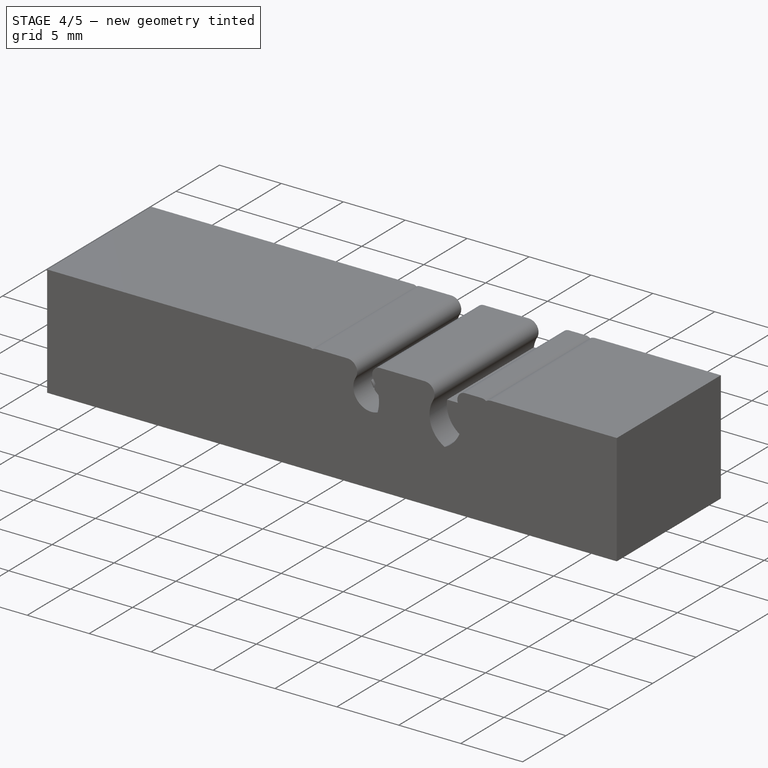
[diagram: stage 4 of 5 — iso view after this stage's code; geometry added in this stage tinted green]
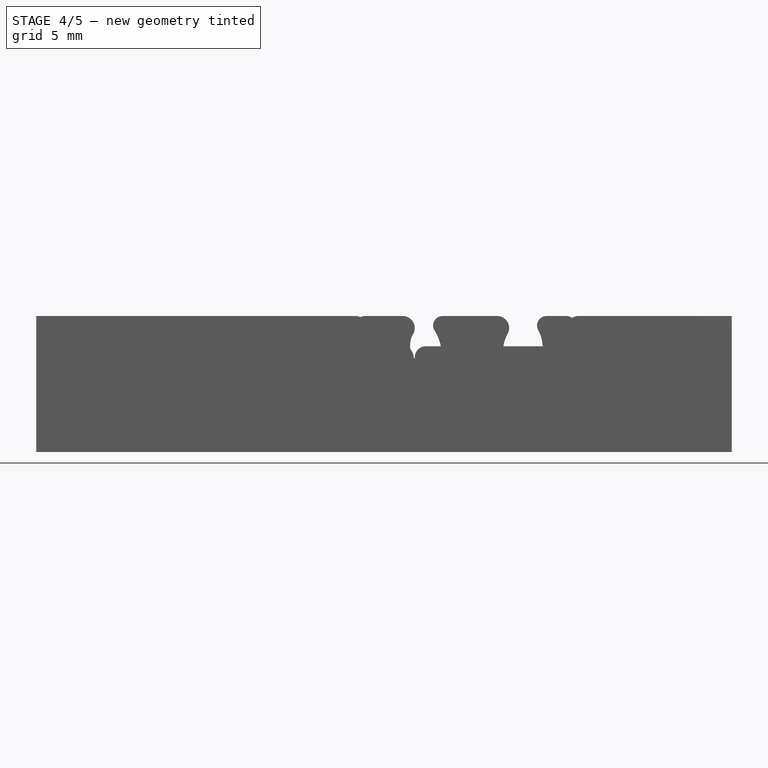
[diagram: stage 4 of 5 — front view after this stage's code; geometry added in this stage tinted green]
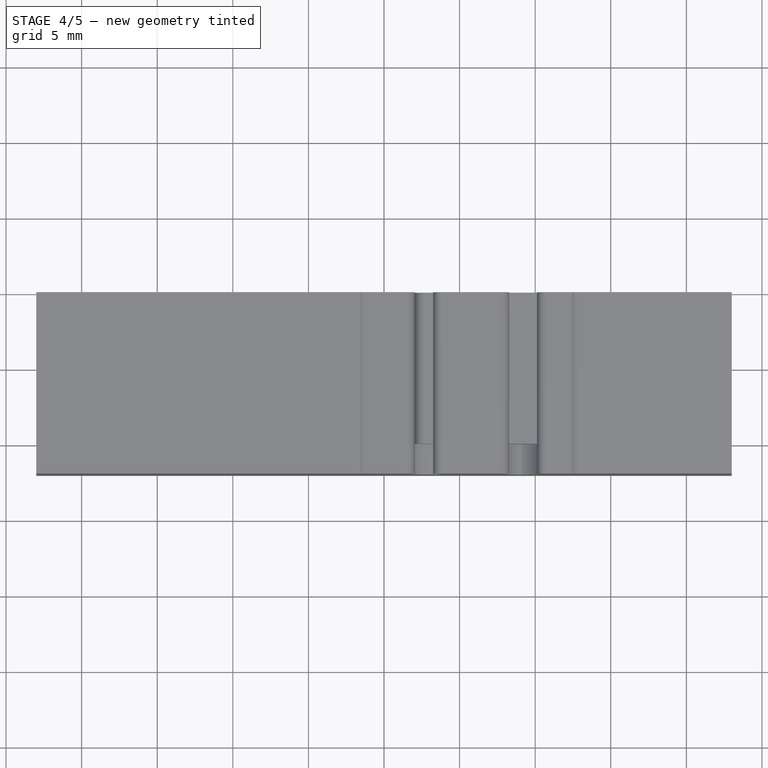
[diagram: stage 4 of 5 — top view after this stage's code; geometry added in this stage tinted green]
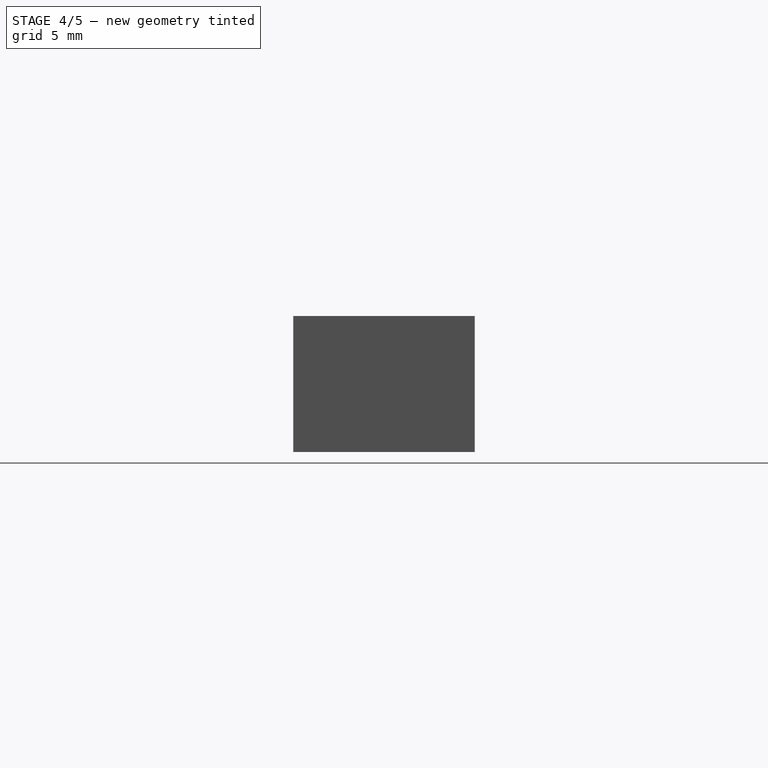
[diagram: stage 4 of 5 — right view after this stage's code; geometry added in this stage tinted green]
FEATURE [PartDesign::Body] Body013  label="Wires-3-220V"
  AllowCompound = false
  Group = -> [Sketch016,Pad011,Sketch019,Pocket002]
  Origin = -> Origin1625
  Placement = pos=(60,150,0) rot=(0,0,-1;3.14159rad)
  Tip = -> Pocket002
FEATURE [Sketcher::SketchObject] Sketch020
  ArcFitTolerance = 0
  AttachmentSupport = -> [XZ_Plane1626]
  FullyConstrained = true
  MakeInternals = false
  MapMode = 5
  Placement = pos=(0,0,0) rot=(1,0,0;1.5708rad)
  sketch-geometry (28):
    g0: LineSegment StartX=-20 StartY=0 StartZ=0 EndX=20 EndY=0 EndZ=0
    g1: LineSegment StartX=20 StartY=0 StartZ=0 EndX=20 EndY=7 EndZ=0
    g2: LineSegment StartX=-20 StartY=7 StartZ=0 EndX=-20 EndY=0 EndZ=0
    g3: ArcOfCircle CenterX=-10.5 CenterY=4.5 CenterZ=0 NormalX=0 NormalY=0 NormalZ=1 AngleXU=0 Radius=2.55 StartAngle=2.57389 EndAngle=6.85089
    g4: ArcOfCircle CenterX=10.5 CenterY=4.5 CenterZ=0 NormalX=0 NormalY=0 NormalZ=1 AngleXU=0 Radius=2.55 StartAngle=2.57389 EndAngle=6.85089
    g5: ArcOfCircle CenterX=13.269 CenterY=6.26587 CenterZ=0 NormalX=0 NormalY=0 NormalZ=1 AngleXU=0 Radius=0.734129 StartAngle=3.14159 EndAngle=3.7093
    g6: ArcOfCircle CenterX=7.73103 CenterY=6.26587 CenterZ=0 NormalX=0 NormalY=0 NormalZ=1 AngleXU=0 Radius=0.734129 StartAngle=5.71548 EndAngle=7.85398
    g7: ArcOfCircle CenterX=-7.73103 CenterY=6.26587 CenterZ=0 NormalX=0 NormalY=0 NormalZ=1 AngleXU=0 Radius=0.734129 StartAngle=1.5708 EndAngle=3.7093
    g8: LineSegment [constr] StartX=-10.5 StartY=10 StartZ=0 EndX=-10.5 EndY=0 EndZ=0
    g9: LineSegment [constr] StartX=10.5 StartY=10 StartZ=0 EndX=10.5 EndY=0 EndZ=0
    g10: ArcOfCircle CenterX=-3.5 CenterY=4.5 CenterZ=0 NormalX=0 NormalY=0 NormalZ=1 AngleXU=0 Radius=2.55 StartAngle=2.57389 EndAngle=6.85089
    g11: ArcOfCircle CenterX=3.5 CenterY=4.5 CenterZ=0 NormalX=0 NormalY=0 NormalZ=1 AngleXU=0 Radius=2.55 StartAngle=2.57389 EndAngle=6.85089
    g12: ArcOfCircle CenterX=6.26897 CenterY=6.26587 CenterZ=0 NormalX=0 NormalY=0 NormalZ=1 AngleXU=0 Radius=0.734129 StartAngle=1.5708 EndAngle=3.7093
    g13: ArcOfCircle CenterX=0.731028 CenterY=6.26587 CenterZ=0 NormalX=0 NormalY=0 NormalZ=1 AngleXU=0 Radius=0.734129 StartAngle=5.71548 EndAngle=7.85398
    g14: ArcOfCircle CenterX=-0.731028 CenterY=6.26587 CenterZ=0 NormalX=0 NormalY=0 NormalZ=1 AngleXU=0 Radius=0.734129 StartAngle=1.5708 EndAngle=3.7093
    g15: ArcOfCircle CenterX=-6.26897 CenterY=6.26587 CenterZ=0 NormalX=0 NormalY=0 NormalZ=1 AngleXU=0 Radius=0.734129 StartAngle=5.71548 EndAngle=7.85398
    g16: LineSegment StartX=-7.73103 StartY=7 StartZ=0 EndX=-6.26897 EndY=7 EndZ=0
    g17: LineSegment StartX=-0.731028 StartY=7 StartZ=0 EndX=0.731028 EndY=7 EndZ=0
    g18: LineSegment StartX=6.26897 StartY=7 StartZ=0 EndX=7.73103 EndY=7 EndZ=0
    g19: LineSegment [constr] StartX=-10.5 StartY=4.5 StartZ=0 EndX=10.5 EndY=4.5 EndZ=0
    g20: LineSegment [constr] StartX=-3.5 StartY=10 StartZ=0 EndX=-3.5 EndY=0 EndZ=0
    g21: LineSegment [constr] StartX=3.5 StartY=10 StartZ=0 EndX=3.5 EndY=0 EndZ=0
    g22: LineSegment StartX=-20 StartY=7 StartZ=0 EndX=-12.5348 EndY=7 EndZ=0
    g23: ArcOfCircle CenterX=-13.269 CenterY=6.26587 CenterZ=0 NormalX=0 NormalY=0 NormalZ=1 AngleXU=0 Radius=0.734129 StartAngle=5.71548 EndAngle=6.28319
    g24: LineSegment StartX=-12.5348 StartY=6.26587 StartZ=0 EndX=-12.5348 EndY=7 EndZ=0
    g25: LineSegment [constr] StartX=-12.5348 StartY=7 StartZ=0 EndX=12.5348 EndY=7 EndZ=0
    g26: LineSegment StartX=12.5348 StartY=6.26587 StartZ=0 EndX=12.5348 EndY=7 EndZ=0
    g27: LineSegment StartX=12.5348 StartY=7 StartZ=0 EndX=20 EndY=7 EndZ=0
  constraints (73):
    c: Coincident(g0,g1)
    c: Coincident(g2,g0)
    c: Vertical(g1)
    c: Vertical(g2)
    c: PointOnObject(g0,g-1)
    c: Symmetric(g0,g0,g-2)
    c: DistanceX(g0,g0) = 40
    c: DistanceY(g2,g2) = 7
    c: Equal(g7,g6)
    c: Equal(g6,g5)
    c: Equal(g3,g4)
    c: Tangent(g6,g4) = 1.5708
    c: Tangent(g5,g4) = 1.5708
    c: Tangent(g7,g3) = 1.5708
    c: Symmetric(g3,g4,g-2)
    c: PointOnObject(g8,g0)
    c: Vertical(g8)
    c: PointOnObject(g9,g0)
    c: Symmetric(g8,g9,g-2)
    c: Symmetric(g3,g3,g8)
    c: DistanceX(g3,g3) = 4.3
    c: Symmetric(g4,g4,g9)
    c: DistanceY(g8,g8) = 10
    c: Equal(g2,g1)
    c: Equal(g3,g10)
    c: Equal(g10,g11)
    c: Symmetric(g10,g11,g-2)
    c: Horizontal(g16)
    c: Tangent(g15,g10) = 1.5708
    c: Tangent(g14,g10) = 1.5708
    c: Horizontal(g18)
    c: Tangent(g18,g12) = 1.5708
    c: Tangent(g12,g11) = 1.5708
    c: Tangent(g13,g11) = 1.5708
    c: Tangent(g17,g13) = 1.5708
    c: Tangent(g17,g14) = 1.5708
    c: Symmetric(g14,g13,g-2)
    c: Equal(g7,g14)
    c: Equal(g13,g15)
    c: Equal(g15,g12)
    c: Coincident(g19,g3)
    c: Coincident(g19,g4)
    c: PointOnObject(g10,g19)
    c: PointOnObject(g20,g0)
    c: Vertical(g20)
    c: PointOnObject(g21,g0)
    c: Vertical(g21)
    c: Equal(g20,g21)
    c: Equal(g21,g8)
    c: Symmetric(g10,g10,g20)
    c: Symmetric(g11,g11,g21)
    c: Tangent(g16,g15) = 1.5708
    c: Tangent(g16,g7) = 1.5708
    c: Tangent(g18,g6) = 1.5708
    c: Coincident(g22,g2)
    c: Horizontal(g22)
    c: Coincident(g24,g22)
    c: Vertical(g24)
    c: Tangent(g23,g3) = 1.5708
    c: Tangent(g24,g23) = -1.5708
    c: Coincident(g25,g22)
    c: Horizontal(g25)
    c: Tangent(g25,g14)
    c: Coincident(g26,g25)
    c: Vertical(g26)
    c: Tangent(g26,g5) = 1.5708
    c: Coincident(g27,g26)
    c: Coincident(g27,g1)
    c: Equal(g23,g7)
    c: Diameter(g3) = 5.1
    c: DistanceX(g8,g20) = 7
    c: DistanceX(g20,g21) = 7
    c: DistanceY(g3) = 4.5
FEATURE [PartDesign::Pad] Pad012
  Direction = (0,-1,2e-16)
  Length = 10
  Length2 = 10
  Placement = pos=(0,0,0) rot=(1,0,0;1.5708rad)
  Profile = -> Sketch020
  ReferenceAxis = -> Sketch020 [N_Axis]
  Suppressed = false
  Type = 0
FEATURE [Sketcher::SketchObject] Sketch021
  ArcFitTolerance = 0
  AttachmentSupport = -> [Pad012]
  FullyConstrained = true
  MakeInternals = false
  MapMode = 5
  Placement = pos=(0,1.6e-15,7) rot=(0,0,1;3.14159rad)
  sketch-geometry (3):
    g0: Circle CenterX=-17 CenterY=5 CenterZ=0 NormalX=0 NormalY=0 NormalZ=1 AngleXU=0 Radius=1.6
    g1: Circle CenterX=17 CenterY=5 CenterZ=0 NormalX=0 NormalY=0 NormalZ=1 AngleXU=0 Radius=1.6
    g2: LineSegment [constr] StartX=-17 StartY=5 StartZ=0 EndX=17 EndY=5 EndZ=0
  constraints (7):
    c: Coincident(g2,g0)
    c: Coincident(g2,g1)
    c: DistanceY(g1) = 5
    c: Symmetric(g0,g1,g-2)
    c: Equal(g0,g1)
    c: Radius(g0) = 1.6
    c: DistanceX(g2,g2) = 34
FEATURE [PartDesign::Pocket] Pocket003
  BaseFeature = -> Pad012
  Direction = (0,0,-1)
  Length = 5
  Length2 = 5
  Placement = pos=(0,0,0) rot=(1,0,0;1.5708rad)
  Profile = -> Sketch021
  ReferenceAxis = -> Sketch021 [N_Axis]
  Suppressed = false
  Type = 1
FEATURE [PartDesign::Body] Body014  label="Steppers-4-wires"
  AllowCompound = false
  Group = -> [Sketch020,Pad012,Sketch021,Pocket003]
  Origin = -> Origin1626
  Placement = pos=(60,110,-7.1e-15) rot=(0,0,-1;3.14159rad)
  Tip = -> Pocket003
FEATURE [Sketcher::SketchObject] Sketch022
  ArcFitTolerance = 0
  AttachmentSupport = -> [XZ_Plane1627]
  FullyConstrained = true
  MakeInternals = false
  MapMode = 5
  Placement = pos=(0,0,0) rot=(1,0,0;1.5708rad)
  sketch-geometry (35):
    g0: LineSegment StartX=-20 StartY=0 StartZ=0 EndX=20 EndY=0 EndZ=0
    g1: LineSegment StartX=20 StartY=0 StartZ=0 EndX=20 EndY=6 EndZ=0
    g2: LineSegment StartX=-20 StartY=6 StartZ=0 EndX=-20 EndY=0 EndZ=0
    g3: ArcOfCircle CenterX=-12.5 CenterY=4.66244 CenterZ=0 NormalX=0 NormalY=0 NormalZ=1 AngleXU=0 Radius=1.45 StartAngle=2.61013 EndAngle=6.81464
    g4: ArcOfCircle CenterX=-2.5 CenterY=4.66244 CenterZ=0 NormalX=0 NormalY=0 NormalZ=1 AngleXU=0 Radius=1.45 StartAngle=2.61013 EndAngle=6.81464
    g5: ArcOfCircle CenterX=-0.905172 CenterY=5.6 CenterZ=0 NormalX=0 NormalY=0 NormalZ=1 AngleXU=0 Radius=0.4 StartAngle=1.5708 EndAngle=3.67305
    g6: ArcOfCircle CenterX=-4.09483 CenterY=5.6 CenterZ=0 NormalX=0 NormalY=0 NormalZ=1 AngleXU=0 Radius=0.4 StartAngle=5.75173 EndAngle=7.85398
    g7: ArcOfCircle CenterX=-10.9052 CenterY=5.6 CenterZ=0 NormalX=0 NormalY=0 NormalZ=1 AngleXU=0 Radius=0.4 StartAngle=1.5708 EndAngle=3.67305
    g8: ArcOfCircle CenterX=-14.0948 CenterY=5.6 CenterZ=0 NormalX=0 NormalY=0 NormalZ=1 AngleXU=0 Radius=0.4 StartAngle=5.75173 EndAngle=7.85398
    g9: LineSegment [constr] StartX=-12.5 StartY=10 StartZ=0 EndX=-12.5 EndY=0 EndZ=0
    g10: LineSegment [constr] StartX=-2.5 StartY=10 StartZ=0 EndX=-2.5 EndY=0 EndZ=0
    g11: ArcOfCircle CenterX=-7.5 CenterY=4.66244 CenterZ=0 NormalX=0 NormalY=0 NormalZ=1 AngleXU=0 Radius=1.45 StartAngle=2.61013 EndAngle=6.81464
    g12: ArcOfCircle CenterX=-5.90517 CenterY=5.6 CenterZ=0 NormalX=0 NormalY=0 NormalZ=1 AngleXU=0 Radius=0.4 StartAngle=1.5708 EndAngle=3.67305
    g13: ArcOfCircle CenterX=-9.09483 CenterY=5.6 CenterZ=0 NormalX=0 NormalY=0 NormalZ=1 AngleXU=0 Radius=0.4 StartAngle=5.75173 EndAngle=7.85398
    g14: LineSegment StartX=-5.90517 StartY=6 StartZ=0 EndX=-4.09483 EndY=6 EndZ=0
    g15: LineSegment [constr] StartX=-12.5 StartY=4.66244 StartZ=0 EndX=12.5 EndY=4.66244 EndZ=0
    g16: LineSegment StartX=-10.9052 StartY=6 StartZ=0 EndX=-9.09483 EndY=6 EndZ=0
    g17: LineSegment [constr] StartX=-7.5 StartY=10 StartZ=0 EndX=-7.5 EndY=0 EndZ=0
    g18: LineSegment StartX=-0.905172 StartY=6 StartZ=0 EndX=0.905172 EndY=6 EndZ=0
    g19: ArcOfCircle CenterX=0.905172 CenterY=5.6 CenterZ=0 NormalX=0 NormalY=0 NormalZ=1 AngleXU=0 Radius=0.4 StartAngle=5.75173 EndAngle=7.85398
    g20: ArcOfCircle CenterX=2.5 CenterY=4.66244 CenterZ=0 NormalX=0 NormalY=0 NormalZ=1 AngleXU=0 Radius=1.45 StartAngle=2.61013 EndAngle=6.81464
    g21: ArcOfCircle CenterX=4.09483 CenterY=5.6 CenterZ=0 NormalX=0 NormalY=0 NormalZ=1 AngleXU=0 Radius=0.4 StartAngle=1.5708 EndAngle=3.67305
    g22: ArcOfCircle CenterX=5.90517 CenterY=5.6 CenterZ=0 NormalX=0 NormalY=0 NormalZ=1 AngleXU=0 Radius=0.4 StartAngle=5.75173 EndAngle=7.85398
    g23: ArcOfCircle CenterX=7.5 CenterY=4.66244 CenterZ=0 NormalX=0 NormalY=0 NormalZ=1 AngleXU=0 Radius=1.45 StartAngle=2.61013 EndAngle=6.81464
    g24: ArcOfCircle CenterX=9.09483 CenterY=5.6 CenterZ=0 NormalX=0 NormalY=0 NormalZ=1 AngleXU=0 Radius=0.4 StartAngle=1.5708 EndAngle=3.67305
    g25: ArcOfCircle CenterX=10.9052 CenterY=5.6 CenterZ=0 NormalX=0 NormalY=0 NormalZ=1 AngleXU=0 Radius=0.4 StartAngle=5.75173 EndAngle=7.85398
    g26: ArcOfCircle CenterX=12.5 CenterY=4.66244 CenterZ=0 NormalX=0 NormalY=0 NormalZ=1 AngleXU=0 Radius=1.45 StartAngle=2.61013 EndAngle=6.81464
    g27: ArcOfCircle CenterX=14.0948 CenterY=5.6 CenterZ=0 NormalX=0 NormalY=0 NormalZ=1 AngleXU=0 Radius=0.4 StartAngle=1.5708 EndAngle=3.67305
    g28: LineSegment StartX=4.09483 StartY=6 StartZ=0 EndX=5.90517 EndY=6 EndZ=0
    g29: LineSegment StartX=9.09483 StartY=6 StartZ=0 EndX=10.9052 EndY=6 EndZ=0
    g30: LineSegment StartX=14.0948 StartY=6 StartZ=0 EndX=20 EndY=6 EndZ=0
    g31: LineSegment StartX=-14.0948 StartY=6 StartZ=0 EndX=-20 EndY=6 EndZ=0
    g32: LineSegment [constr] StartX=2.5 StartY=0 StartZ=0 EndX=2.5 EndY=10 EndZ=0
    g33: LineSegment [constr] StartX=7.5 StartY=0 StartZ=0 EndX=7.5 EndY=10 EndZ=0
    g34: LineSegment [constr] StartX=12.5 StartY=0 StartZ=0 EndX=12.5 EndY=10 EndZ=0
  constraints (98):
    c: Coincident(g0,g1)
    c: Coincident(g2,g0)
    c: Vertical(g1)
    c: Vertical(g2)
    c: PointOnObject(g0,g-1)
    c: DistanceX(g0,g0) = 40
    c: DistanceY(g2,g2) = 6
    c: Equal(g8,g7)
    c: Equal(g7,g6)
    c: Equal(g6,g5)
    c: Equal(g3,g4)
    c: Tangent(g6,g4) = 1.5708
    c: Tangent(g5,g4) = 1.5708
    c: Tangent(g7,g3) = 1.5708
    c: Tangent(g8,g3) = 1.5708
    c: Diameter(g3) = 2.9
    c: Radius(g8) = 0.4
    c: PointOnObject(g9,g0)
    c: Vertical(g9)
    c: PointOnObject(g10,g0)
    c: Symmetric(g3,g3,g9)
    c: DistanceX(g3,g3) = 2.5
    c: Symmetric(g4,g4,g10)
    c: DistanceY(g9,g9) = 10
    c: Equal(g2,g1)
    c: Equal(g3,g11)
    c: Tangent(g12,g11) = 1.5708
    c: Horizontal(g14)
    c: Equal(g7,g12)
    c: Coincident(g15,g3)
    c: PointOnObject(g11,g15)
    c: Tangent(g14,g6) = 1.5708
    c: Horizontal(g16)
    c: Tangent(g12,g14) = 1.5708
    c: Tangent(g16,g13) = 1.5708
    c: Tangent(g7,g16) = 1.5708
    c: Vertical(g10)
    c: Horizontal(g15)
    c: PointOnObject(g17,g0)
    c: Vertical(g17)
    c: Equal(g17,g9)
    c: DistanceX(g9,g17) = 5
    c: Horizontal(g18)
    c: Coincident(g30,g1)
    c: Coincident(g31,g2)
    c: Horizontal(g31)
    c: Horizontal(g30)
    c: Horizontal(g28)
    c: Horizontal(g29)
    c: Equal(g3,g20)
    c: Equal(g20,g23)
    c: Equal(g23,g26)
    c: Equal(g8,g19)
    c: Equal(g19,g21)
    c: Equal(g21,g22)
    c: Equal(g22,g24)
    c: Equal(g24,g25)
    c: Equal(g25,g27)
    c: Tangent(g20,g19) = 1.5708
    c: Tangent(g21,g20) = 1.5708
    c: Tangent(g28,g22) = 1.5708
    c: Tangent(g23,g22) = 1.5708
    c: Tangent(g24,g23) = 1.5708
    c: Tangent(g29,g24) = 1.5708
    c: Tangent(g19,g18) = 1.5708
    c: Tangent(g29,g25) = 1.5708
    c: Tangent(g26,g25) = 1.5708
    c: Tangent(g27,g26) = 1.5708
    c: Tangent(g30,g27) = 1.5708
    c: Equal(g30,g31)
    c: Coincident(g15,g26)
    c: PointOnObject(g23,g15)
    c: PointOnObject(g20,g15)
    c: Equal(g13,g8)
    c: PointOnObject(g32,g0)
    c: Vertical(g32)
    c: PointOnObject(g33,g0)
    c: Vertical(g33)
    c: PointOnObject(g34,g0)
    c: Vertical(g34)
    c: Equal(g9,g32)
    c: Equal(g32,g33)
    c: Equal(g33,g34)
    c: Symmetric(g19,g20,g32)
    c: Tangent(g18,g5) = 1.5708
    c: PointOnObject(g4,g15)
    c: DistanceX(g10,g32) = 5
    c: DistanceX(g32,g33) = 5
    c: DistanceX(g33,g34) = 5
    c: Equal(g10,g9)
    c: DistanceX(g17,g10) = 5
    c: Symmetric(g22,g23,g33)
    c: Symmetric(g25,g26,g34)
    c: Tangent(g31,g8) = -1.5708
    c: Symmetric(g0,g0,g-2)
    c: Symmetric(g11,g11,g17)
    c: Coincident(g11,g13)
    c: Tangent(g28,g21) = 1.5708
FEATURE [PartDesign::Pad] Pad013
  Direction = (0,-1,2e-16)
  Length = 10
  Length2 = 10
  Placement = pos=(0,0,0) rot=(1,0,0;1.5708rad)
  Profile = -> Sketch022
  ReferenceAxis = -> Sketch022 [N_Axis]
  Suppressed = false
  Type = 0
FEATURE [Sketcher::SketchObject] Sketch023
  ArcFitTolerance = 0
  AttachmentSupport = -> [Pad013]
  FullyConstrained = true
  MakeInternals = false
  MapMode = 5
  Placement = pos=(0,0,0) rot=(1,0,0;3.14159rad)
  sketch-geometry (2):
    g0: Circle CenterX=-17 CenterY=5 CenterZ=0 NormalX=0 NormalY=0 NormalZ=1 AngleXU=0 Radius=1.6
    g1: Circle CenterX=17 CenterY=5 CenterZ=0 NormalX=0 NormalY=0 NormalZ=1 AngleXU=0 Radius=1.6
  constraints (5):
    c: Symmetric(g1,g0,g-2)
    c: DistanceY(g0) = 5
    c: DistanceX(g0,g1) = 34
    c: Equal(g0,g1)
    c: Radius(g1) = 1.6
FEATURE [PartDesign::Pocket] Pocket004
  BaseFeature = -> Pad013
  Direction = (0,0,1)
  Length = 5
  Length2 = 5
  Placement = pos=(0,0,0) rot=(1,0,0;1.5708rad)
  Profile = -> Sketch023
  ReferenceAxis = -> Sketch023 [N_Axis]
  Suppressed = false
  Type = 1
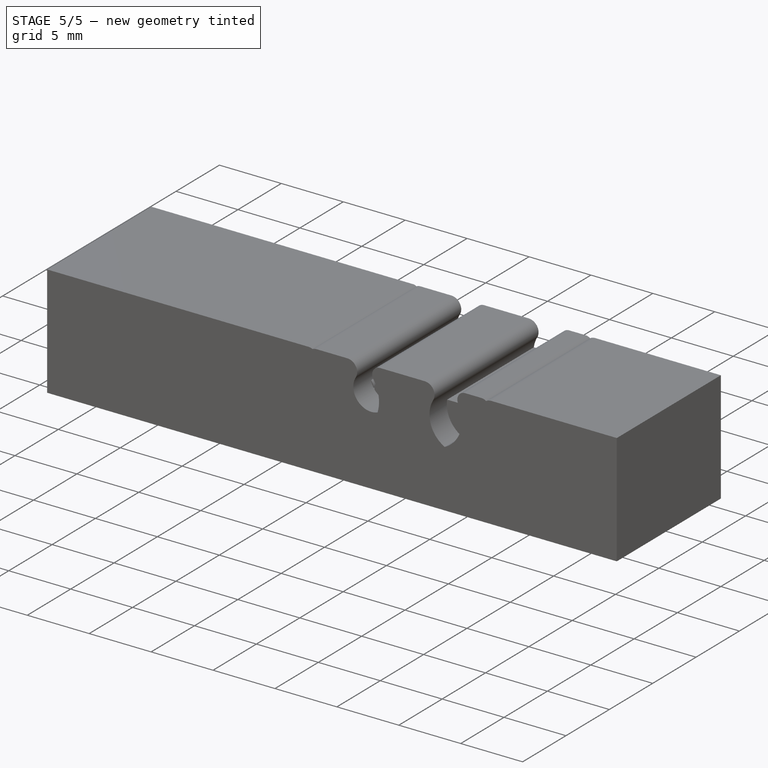
[diagram: stage 5 of 5 — iso view after this stage's code; geometry added in this stage tinted green]
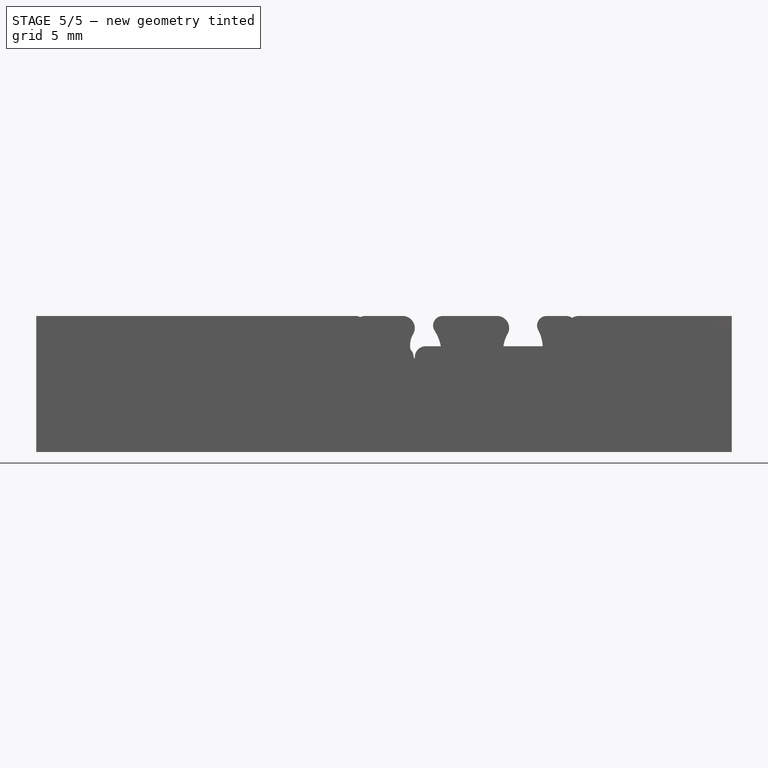
[diagram: stage 5 of 5 — front view after this stage's code; geometry added in this stage tinted green]
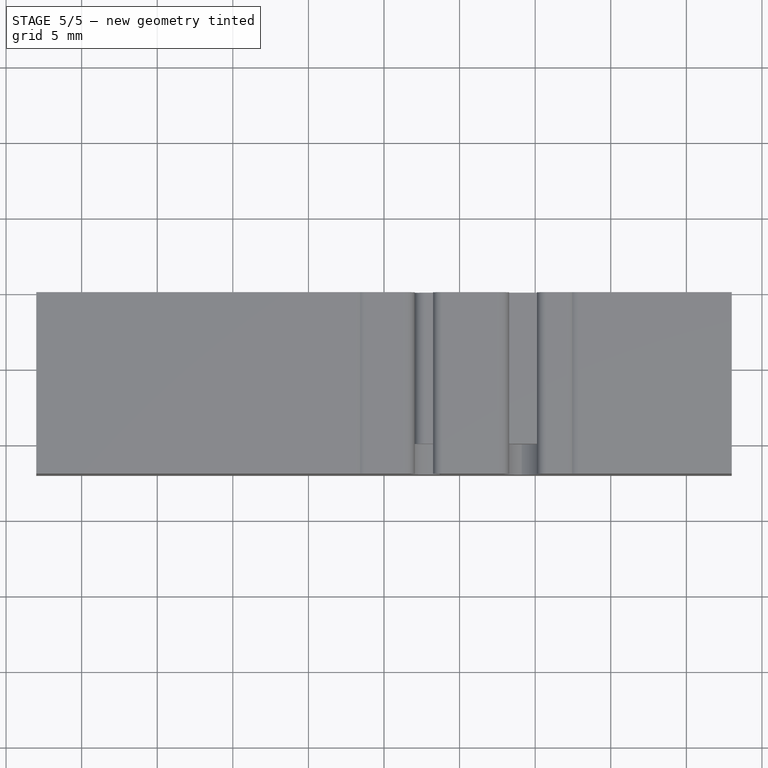
[diagram: stage 5 of 5 — top view after this stage's code; geometry added in this stage tinted green]
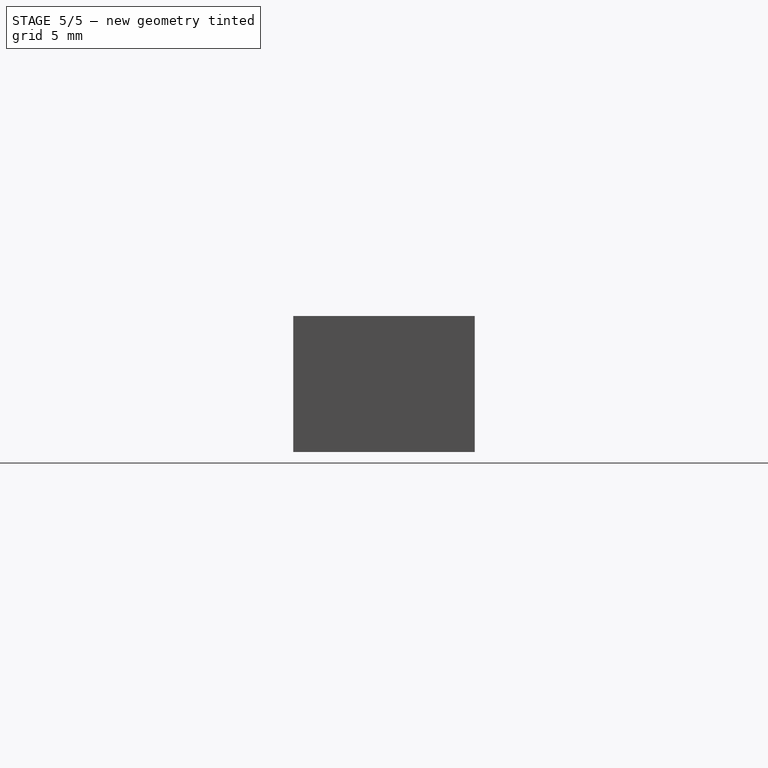
[diagram: stage 5 of 5 — right view after this stage's code; geometry added in this stage tinted green]
FEATURE [Sketcher::SketchObject] Sketch015
  ArcFitTolerance = 0
  AttachmentSupport = -> [XZ_Plane1624]
  FullyConstrained = true
  MakeInternals = false
  MapMode = 5
  Placement = pos=(0,0,0) rot=(1,0,0;1.5708rad)
  sketch-geometry (38):
    g0: LineSegment StartX=-20 StartY=0 StartZ=0 EndX=20 EndY=0 EndZ=0
    g1: LineSegment StartX=20 StartY=0 StartZ=0 EndX=20 EndY=6 EndZ=0
    g2: LineSegment StartX=-20 StartY=6 StartZ=0 EndX=-20 EndY=0 EndZ=0
    g3: ArcOfCircle CenterX=-10 CenterY=4.5 CenterZ=0 NormalX=0 NormalY=0 NormalZ=1 AngleXU=0 Radius=1.25 StartAngle=2.56808 EndAngle=6.8567
    g4: ArcOfCircle CenterX=10 CenterY=4.5 CenterZ=0 NormalX=0 NormalY=0 NormalZ=1 AngleXU=0 Radius=1.25 StartAngle=2.56808 EndAngle=6.8567
    g5: ArcOfCircle CenterX=11.4975 CenterY=5.46728 CenterZ=0 NormalX=0 NormalY=0 NormalZ=1 AngleXU=0 Radius=0.53272 StartAngle=3.14159 EndAngle=3.71511
    g6: ArcOfCircle CenterX=8.50251 CenterY=5.46728 CenterZ=0 NormalX=0 NormalY=0 NormalZ=1 AngleXU=0 Radius=0.53272 StartAngle=5.70967 EndAngle=7.85398
    g7: ArcOfCircle CenterX=-8.50251 CenterY=5.46728 CenterZ=0 NormalX=0 NormalY=0 NormalZ=1 AngleXU=0 Radius=0.53272 StartAngle=1.5708 EndAngle=3.71511
    g8: LineSegment [constr] StartX=-10 StartY=10 StartZ=0 EndX=-10 EndY=0 EndZ=0
    g9: LineSegment [constr] StartX=10 StartY=10 StartZ=0 EndX=10 EndY=0 EndZ=0
    g10: ArcOfCircle CenterX=-6 CenterY=4.5 CenterZ=0 NormalX=0 NormalY=0 NormalZ=1 AngleXU=0 Radius=1.25 StartAngle=2.56808 EndAngle=6.8567
    g11: ArcOfCircle CenterX=6 CenterY=4.5 CenterZ=0 NormalX=0 NormalY=0 NormalZ=1 AngleXU=0 Radius=1.25 StartAngle=2.56808 EndAngle=6.8567
    g12: ArcOfCircle CenterX=7.49749 CenterY=5.46728 CenterZ=0 NormalX=0 NormalY=0 NormalZ=1 AngleXU=0 Radius=0.53272 StartAngle=1.5708 EndAngle=3.71511
    g13: ArcOfCircle CenterX=4.50251 CenterY=5.46728 CenterZ=0 NormalX=0 NormalY=0 NormalZ=1 AngleXU=0 Radius=0.53272 StartAngle=5.70967 EndAngle=7.85398
    g14: ArcOfCircle CenterX=-4.50251 CenterY=5.46728 CenterZ=0 NormalX=0 NormalY=0 NormalZ=1 AngleXU=0 Radius=0.53272 StartAngle=1.5708 EndAngle=3.71511
    g15: ArcOfCircle CenterX=-7.49749 CenterY=5.46728 CenterZ=0 NormalX=0 NormalY=0 NormalZ=1 AngleXU=0 Radius=0.53272 StartAngle=5.70967 EndAngle=7.85398
    g16: LineSegment StartX=-8.50251 StartY=6 StartZ=0 EndX=-7.49749 EndY=6 EndZ=0
    g17: LineSegment StartX=7.49749 StartY=6 StartZ=0 EndX=8.50251 EndY=6 EndZ=0
    g18: LineSegment [constr] StartX=-10 StartY=4.5 StartZ=0 EndX=10 EndY=4.5 EndZ=0
    g19: LineSegment [constr] StartX=-6 StartY=10 StartZ=0 EndX=-6 EndY=0 EndZ=0
    g20: LineSegment [constr] StartX=6 StartY=10 StartZ=0 EndX=6 EndY=0 EndZ=0
    g21: LineSegment StartX=-20 StartY=6 StartZ=0 EndX=-10.9648 EndY=6 EndZ=0
    g22: ArcOfCircle CenterX=-11.4975 CenterY=5.46728 CenterZ=0 NormalX=0 NormalY=0 NormalZ=1 AngleXU=0 Radius=0.53272 StartAngle=5.70967 EndAngle=6.28319
    g23: LineSegment StartX=-10.9648 StartY=5.46728 StartZ=0 EndX=-10.9648 EndY=6 EndZ=0
    g24: LineSegment [constr] StartX=-10.9648 StartY=6 StartZ=0 EndX=10.9648 EndY=6 EndZ=0
    g25: LineSegment StartX=10.9648 StartY=5.46728 StartZ=0 EndX=10.9648 EndY=6 EndZ=0
    g26: LineSegment StartX=10.9648 StartY=6 StartZ=0 EndX=20 EndY=6 EndZ=0
    g27: ArcOfCircle CenterX=-2 CenterY=4.5 CenterZ=0 NormalX=0 NormalY=0 NormalZ=1 AngleXU=0 Radius=1.25 StartAngle=2.56808 EndAngle=6.8567
    g28: ArcOfCircle CenterX=2 CenterY=4.5 CenterZ=0 NormalX=0 NormalY=0 NormalZ=1 AngleXU=0 Radius=1.25 StartAngle=2.56808 EndAngle=6.8567
    g29: ArcOfCircle CenterX=3.49749 CenterY=5.46728 CenterZ=0 NormalX=0 NormalY=0 NormalZ=1 AngleXU=0 Radius=0.53272 StartAngle=1.5708 EndAngle=3.71511
    g30: ArcOfCircle CenterX=-3.49749 CenterY=5.46728 CenterZ=0 NormalX=0 NormalY=0 NormalZ=1 AngleXU=0 Radius=0.53272 StartAngle=5.70967 EndAngle=7.85398
    g31: ArcOfCircle CenterX=-0.502515 CenterY=5.46728 CenterZ=0 NormalX=0 NormalY=0 NormalZ=1 AngleXU=0 Radius=0.53272 StartAngle=1.5708 EndAngle=3.71511
    g32: ArcOfCircle CenterX=0.502515 CenterY=5.46728 CenterZ=0 NormalX=0 NormalY=0 NormalZ=1 AngleXU=0 Radius=0.53272 StartAngle=5.70967 EndAngle=7.85398
    g33: LineSegment StartX=-4.50251 StartY=6 StartZ=0 EndX=-3.49749 EndY=6 EndZ=0
    g34: LineSegment StartX=-0.502515 StartY=6 StartZ=0 EndX=0.502515 EndY=6 EndZ=0
    g35: LineSegment StartX=3.49749 StartY=6 StartZ=0 EndX=4.50251 EndY=6 EndZ=0
    g36: LineSegment [constr] StartX=-2 StartY=10 StartZ=0 EndX=-2 EndY=0 EndZ=0
    g37: LineSegment [constr] StartX=2 StartY=10 StartZ=0 EndX=2 EndY=0 EndZ=0
  constraints (105):
    c: Coincident(g0,g1)
    c: Coincident(g2,g0)
    c: Vertical(g1)
    c: Vertical(g2)
    c: PointOnObject(g0,g-1)
    c: Symmetric(g0,g0,g-2)
    c: DistanceX(g0,g0) = 40
    c: DistanceY(g2,g2) = 6
    c: Equal(g7,g6)
    c: Equal(g6,g5)
    c: Equal(g3,g4)
    c: Tangent(g6,g4) = 1.5708
    c: Tangent(g5,g4) = 1.5708
    c: Tangent(g7,g3) = 1.5708
    c: Diameter(g3) = 2.5
    c: PointOnObject(g8,g0)
    c: Vertical(g8)
    c: PointOnObject(g9,g0)
    c: Symmetric(g8,g9,g-2)
    c: Symmetric(g3,g3,g8)
    c: DistanceX(g3,g3) = 2.1
    c: Symmetric(g4,g4,g9)
    c: DistanceY(g8,g8) = 10
    c: Equal(g2,g1)
    c: Equal(g3,g10)
    c: Equal(g10,g11)
    c: Symmetric(g10,g11,g-2)
    c: Horizontal(g16)
    c: Tangent(g15,g10) = 1.5708
    c: Tangent(g14,g10) = 1.5708
    c: Horizontal(g17)
    c: Tangent(g17,g12) = 1.5708
    c: Tangent(g12,g11) = 1.5708
    c: Tangent(g13,g11) = 1.5708
    c: Symmetric(g14,g13,g-2)
    c: Equal(g7,g14)
    c: Equal(g13,g15)
    c: Equal(g15,g12)
    c: Coincident(g18,g3)
    c: Coincident(g18,g4)
    c: PointOnObject(g10,g18)
    c: PointOnObject(g19,g0)
    c: Vertical(g19)
    c: PointOnObject(g20,g0)
    c: Vertical(g20)
    c: Equal(g19,g20)
    c: Equal(g20,g8)
    c: Symmetric(g10,g10,g19)
    c: Symmetric(g11,g11,g20)
    c: DistanceX(g8,g19) = 4
    c: Tangent(g16,g15) = 1.5708
    c: Tangent(g16,g7) = 1.5708
    c: Tangent(g17,g6) = 1.5708
    c: Coincident(g21,g2)
    c: Horizontal(g21)
    c: Coincident(g23,g21)
    c: Vertical(g23)
    c: Tangent(g22,g3) = 1.5708
    c: Tangent(g23,g22) = -1.5708
    c: Coincident(g24,g21)
    c: Horizontal(g24)
    c: Tangent(g24,g14)
    c: Coincident(g25,g24)
    c: Vertical(g25)
    c: Tangent(g25,g5) = 1.5708
    c: Coincident(g26,g25)
    c: Coincident(g26,g1)
    c: Equal(g22,g7)
    c: Vertical(g9)
    c: PointOnObject(g11,g18)
    c: PointOnObject(g27,g18)
    c: PointOnObject(g28,g18)
    c: PointOnObject(g30,g24)
    c: PointOnObject(g32,g24)
    c: Tangent(g32,g28) = 1.5708
    c: Tangent(g29,g28) = 1.5708
    c: Tangent(g31,g27) = 1.5708
    c: Tangent(g30,g27) = 1.5708
    c: Equal(g3,g27)
    c: Equal(g27,g28)
    c: Equal(g7,g30)
    c: Equal(g30,g31)
    c: Equal(g31,g32)
    c: Equal(g32,g29)
    c: Coincident(g33,g14)
    c: Horizontal(g33)
    c: Coincident(g35,g13)
    c: Tangent(g35,g29) = 1.5708
    c: Tangent(g34,g32) = 1.5708
    c: Tangent(g34,g31) = 1.5708
    c: Horizontal(g34)
    c: Horizontal(g35)
    c: PointOnObject(g36,g0)
    c: Vertical(g36)
    c: PointOnObject(g37,g0)
    c: Vertical(g37)
    c: PointOnObject(g27,g36)
    c: Equal(g37,g8)
    c: DistanceX(g19,g36) = 4
    c: DistanceX(g36,g37) = 4
    c: PointOnObject(g28,g37)
    c: Symmetric(g36,g37,g-2)
    c: PointOnObject(g7,g24)
    c: Tangent(g33,g30) = 1.5708
    c: DistanceY(g4) = 4.5
FEATURE [PartDesign::Pad] Pad010
  Direction = (0,-1,2e-16)
  Length = 10
  Length2 = 10
  Placement = pos=(0,0,0) rot=(1,0,0;1.5708rad)
  Profile = -> Sketch015
  ReferenceAxis = -> Sketch015 [N_Axis]
  Suppressed = false
  Type = 0
FEATURE [Sketcher::SketchObject] Sketch016
  ArcFitTolerance = 0
  AttachmentSupport = -> [XZ_Plane1625]
  FullyConstrained = true
  MakeInternals = false
  MapMode = 5
  Placement = pos=(0,0,0) rot=(1,0,0;1.5708rad)
  sketch-geometry (19):
    g0: LineSegment StartX=-20 StartY=0 StartZ=0 EndX=20 EndY=0 EndZ=0
    g1: LineSegment StartX=20 StartY=0 StartZ=0 EndX=20 EndY=6 EndZ=0
    g2: LineSegment StartX=-20 StartY=6 StartZ=0 EndX=-20 EndY=0 EndZ=0
    g3: ArcOfCircle CenterX=-5 CenterY=4.66244 CenterZ=0 NormalX=0 NormalY=0 NormalZ=1 AngleXU=0 Radius=1.45 StartAngle=2.61013 EndAngle=6.81464
    g4: ArcOfCircle CenterX=5 CenterY=4.66244 CenterZ=0 NormalX=0 NormalY=0 NormalZ=1 AngleXU=0 Radius=1.45 StartAngle=2.61013 EndAngle=6.81464
    g5: ArcOfCircle CenterX=6.59483 CenterY=5.6 CenterZ=0 NormalX=0 NormalY=0 NormalZ=1 AngleXU=0 Radius=0.4 StartAngle=1.5708 EndAngle=3.67305
    g6: ArcOfCircle CenterX=3.40517 CenterY=5.6 CenterZ=0 NormalX=0 NormalY=0 NormalZ=1 AngleXU=0 Radius=0.4 StartAngle=5.75173 EndAngle=7.85398
    g7: ArcOfCircle CenterX=-3.40517 CenterY=5.6 CenterZ=0 NormalX=0 NormalY=0 NormalZ=1 AngleXU=0 Radius=0.4 StartAngle=1.5708 EndAngle=3.67305
    g8: ArcOfCircle CenterX=-6.59483 CenterY=5.6 CenterZ=0 NormalX=0 NormalY=0 NormalZ=1 AngleXU=0 Radius=0.4 StartAngle=5.75173 EndAngle=7.85398
    g9: LineSegment StartX=6.59483 StartY=6 StartZ=0 EndX=20 EndY=6 EndZ=0
    g10: LineSegment [constr] StartX=-5 StartY=10 StartZ=0 EndX=-5 EndY=0 EndZ=0
    g11: LineSegment [constr] StartX=5 StartY=10 StartZ=0 EndX=5 EndY=0 EndZ=0
    g12: ArcOfCircle CenterX=0 CenterY=4.66244 CenterZ=0 NormalX=0 NormalY=0 NormalZ=1 AngleXU=0 Radius=1.45 StartAngle=2.61013 EndAngle=6.81464
    g13: ArcOfCircle CenterX=1.59483 CenterY=5.6 CenterZ=0 NormalX=0 NormalY=0 NormalZ=1 AngleXU=0 Radius=0.4 StartAngle=1.5708 EndAngle=3.67305
    g14: ArcOfCircle CenterX=-1.59483 CenterY=5.6 CenterZ=0 NormalX=0 NormalY=0 NormalZ=1 AngleXU=0 Radius=0.4 StartAngle=5.75173 EndAngle=7.85398
    g15: LineSegment StartX=1.59483 StartY=6 StartZ=0 EndX=3.40517 EndY=6 EndZ=0
    g16: LineSegment [constr] StartX=-5 StartY=4.66244 StartZ=0 EndX=5 EndY=4.66244 EndZ=0
    g17: LineSegment StartX=-20 StartY=6 StartZ=0 EndX=-6.59483 EndY=6 EndZ=0
    g18: LineSegment StartX=-3.40517 StartY=6 StartZ=0 EndX=-1.59483 EndY=6 EndZ=0
  constraints (49):
    c: Coincident(g0,g1)
    c: Coincident(g2,g0)
    c: Vertical(g1)
    c: Vertical(g2)
    c: PointOnObject(g0,g-1)
    c: Symmetric(g0,g0,g-2)
    c: DistanceX(g0,g0) = 40
    c: DistanceY(g2,g2) = 6
    c: Equal(g8,g7)
    c: Equal(g7,g6)
    c: Equal(g6,g5)
    c: Equal(g3,g4)
    c: Tangent(g6,g4) = 1.5708
    c: Tangent(g5,g4) = 1.5708
    c: Tangent(g7,g3) = 1.5708
    c: Tangent(g8,g3) = 1.5708
    c: Diameter(g3) = 2.9
    c: Symmetric(g3,g4,g-2)
    c: Radius(g8) = 0.4
    c: Coincident(g9,g1)
    c: PointOnObject(g10,g0)
    c: Vertical(g10)
    c: PointOnObject(g11,g0)
    c: Symmetric(g10,g11,g-2)
    c: Symmetric(g3,g3,g10)
    c: DistanceX(g3,g3) = 2.5
    c: Symmetric(g4,g4,g11)
    c: DistanceY(g10,g10) = 10
    c: Equal(g2,g1)
    c: Equal(g3,g12)
    c: Tangent(g14,g12) = 1.5708
    c: Tangent(g13,g12) = 1.5708
    c: Horizontal(g15)
    c: Equal(g7,g13)
    c: Coincident(g16,g3)
    c: Coincident(g16,g4)
    c: PointOnObject(g12,g16)
    c: Tangent(g15,g6) = 1.5708
    c: Tangent(g9,g5) = 1.5708
    c: PointOnObject(g12,g-2)
    c: Symmetric(g14,g13,g-2)
    c: DistanceX(g10,g11) = 10
    c: Coincident(g17,g2)
    c: Horizontal(g17)
    c: Tangent(g17,g8) = 1.5708
    c: Horizontal(g18)
    c: Tangent(g13,g15) = 1.5708
    c: Tangent(g18,g14) = 1.5708
    c: Tangent(g7,g18) = 1.5708
FEATURE [PartDesign::Pad] Pad011
  Direction = (0,-1,2e-16)
  Length = 10
  Length2 = 10
  Placement = pos=(0,0,0) rot=(1,0,0;1.5708rad)
  Profile = -> Sketch016
  ReferenceAxis = -> Sketch016 [N_Axis]
  Suppressed = false
  Type = 0
FEATURE [Sketcher::SketchObject] Sketch018
  ArcFitTolerance = 0
  AttachmentSupport = -> [Pad010]
  FullyConstrained = true
  MakeInternals = false
  MapMode = 5
  Placement = pos=(0,1.3e-15,6) rot=(0,0,1;3.14159rad)
  sketch-geometry (3):
    g0: Circle CenterX=-17 CenterY=5 CenterZ=0 NormalX=0 NormalY=0 NormalZ=1 AngleXU=0 Radius=1.6
    g1: Circle CenterX=17 CenterY=5 CenterZ=0 NormalX=0 NormalY=0 NormalZ=1 AngleXU=0 Radius=1.6
    g2: LineSegment [constr] StartX=-17 StartY=5 StartZ=0 EndX=17 EndY=5 EndZ=0
  constraints (7):
    c: Coincident(g2,g0)
    c: Coincident(g2,g1)
    c: DistanceY(g1) = 5
    c: Symmetric(g0,g1,g-2)
    c: Equal(g0,g1)
    c: Radius(g0) = 1.6
    c: DistanceX(g2,g2) = 34
FEATURE [PartDesign::Pocket] Pocket001
  BaseFeature = -> Pad010
  Direction = (0,0,-1)
  Length = 5
  Length2 = 5
  Placement = pos=(0,0,0) rot=(1,0,0;1.5708rad)
  Profile = -> Sketch018
  ReferenceAxis = -> Sketch018 [N_Axis]
  Suppressed = false
  Type = 1
FEATURE [PartDesign::Body] Body012  label="Wires-6-24V"
  AllowCompound = false
  Group = -> [Sketch015,Pad010,Sketch018,Pocket001]
  Origin = -> Origin1624
  Placement = pos=(60,70,0) rot=(0,0,-1;3.14159rad)
  Tip = -> Pocket001
FEATURE [Sketcher::SketchObject] Sketch019
  ArcFitTolerance = 0
  AttachmentSupport = -> [Pad011]
  FullyConstrained = true
  MakeInternals = false
  MapMode = 5
  Placement = pos=(-8.44e-13,1.3e-15,6) rot=(0,0,1;3.14159rad)
  sketch-geometry (2):
    g0: Circle CenterX=-17 CenterY=5 CenterZ=0 NormalX=0 NormalY=0 NormalZ=1 AngleXU=0 Radius=1.6
    g1: Circle CenterX=17 CenterY=5 CenterZ=0 NormalX=0 NormalY=0 NormalZ=1 AngleXU=0 Radius=1.6
  constraints (5):
    c: Symmetric(g1,g0,g-2)
    c: DistanceY(g0) = 5
    c: DistanceX(g0,g1) = 34
    c: Equal(g0,g1)
    c: Radius(g1) = 1.6
FEATURE [PartDesign::Pocket] Pocket002
  BaseFeature = -> Pad011
  Direction = (1.407e-13,0,-1)
  Length = 5
  Length2 = 5
  Placement = pos=(0,0,0) rot=(1,0,0;1.5708rad)
  Profile = -> Sketch019
  ReferenceAxis = -> Sketch019 [N_Axis]
  Suppressed = false
  Type = 1
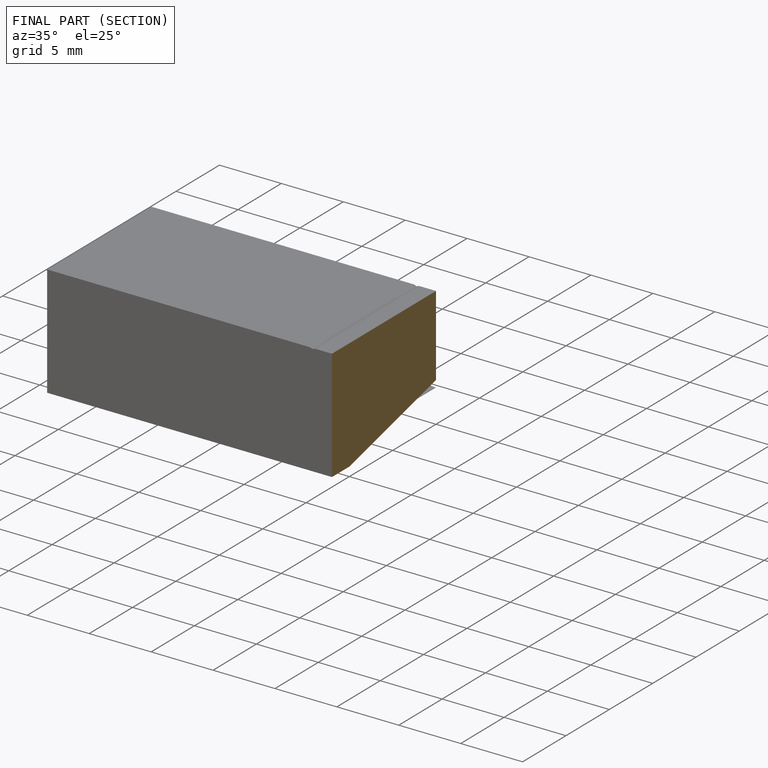
[diagram: finished part — half-section view (interior)]
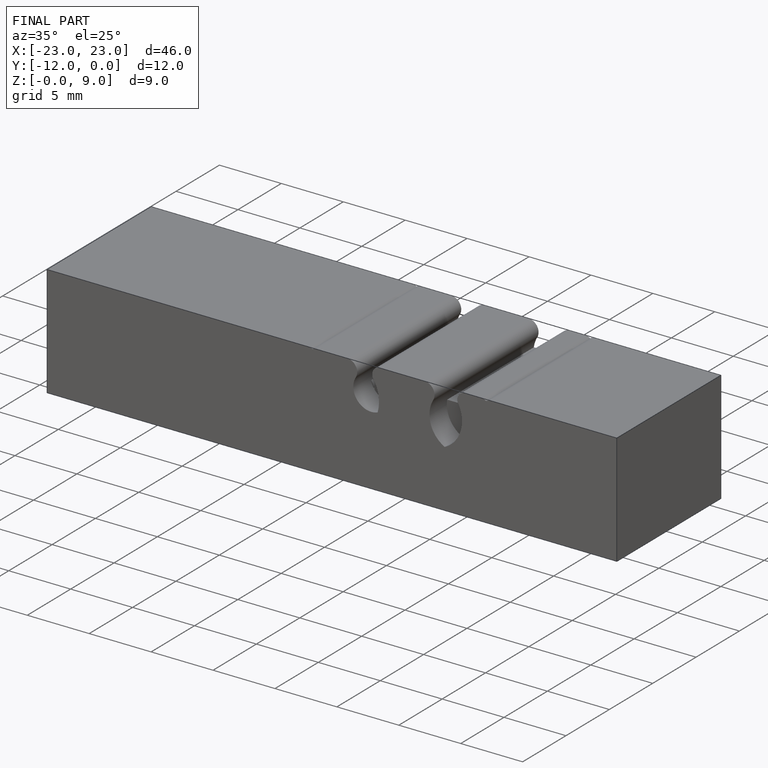
[diagram: finished part — iso view with bounding-box wireframe]
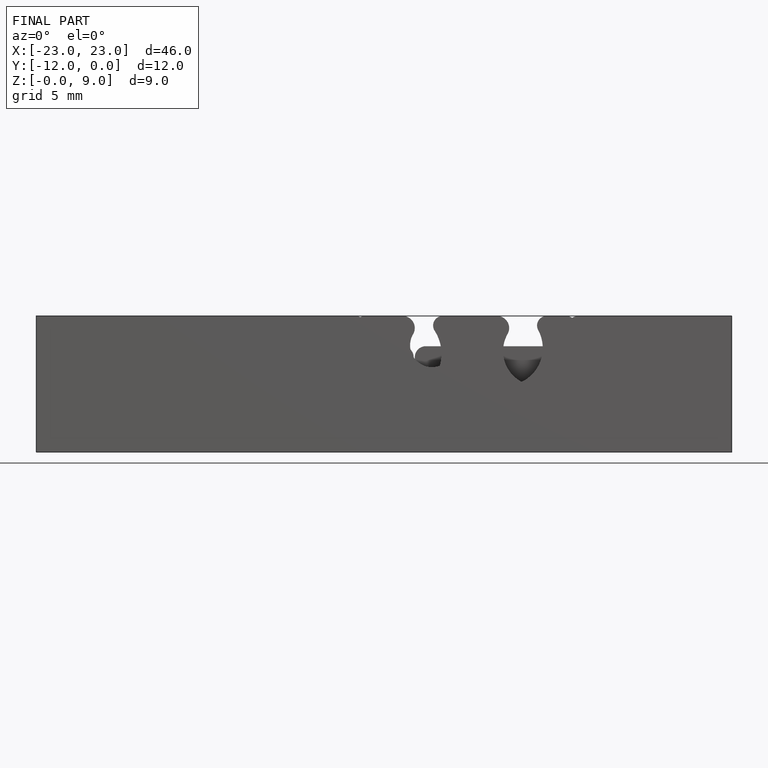
[diagram: finished part — front view with bounding-box wireframe]
